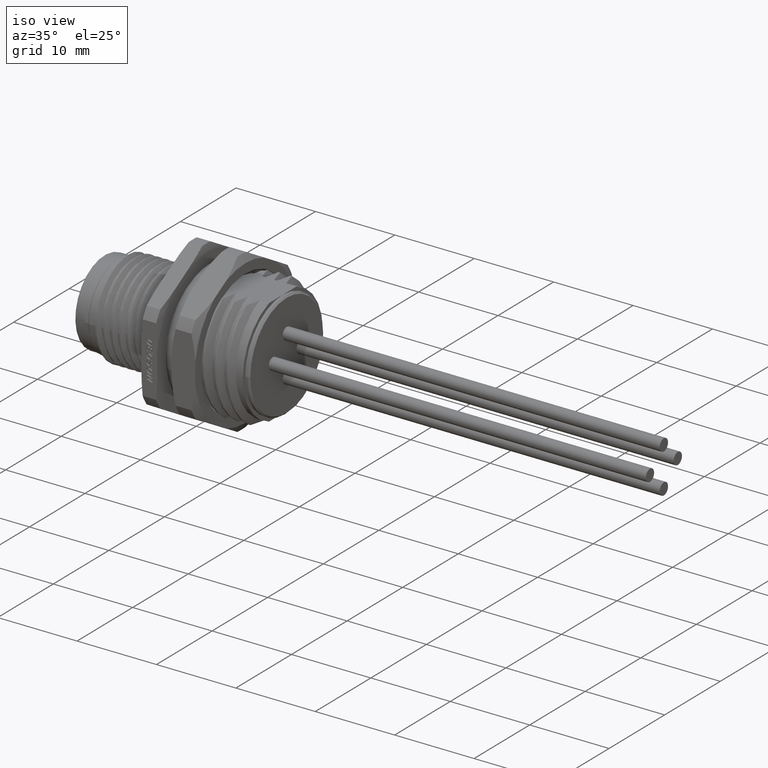
[diagram: clean part render]
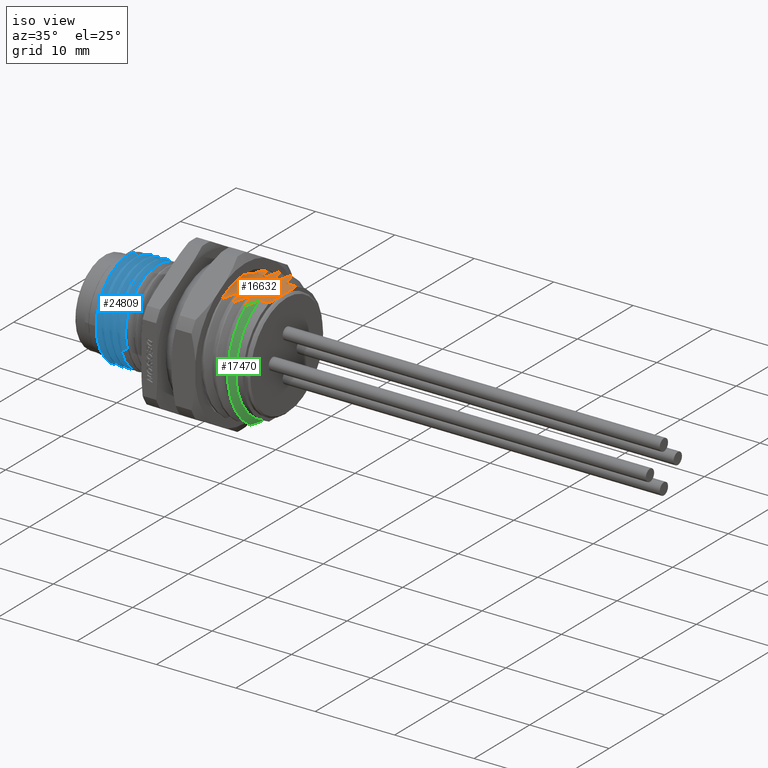
[diagram: same view with three faces highlighted in distinct colors, each labeled with its STEP entity id]
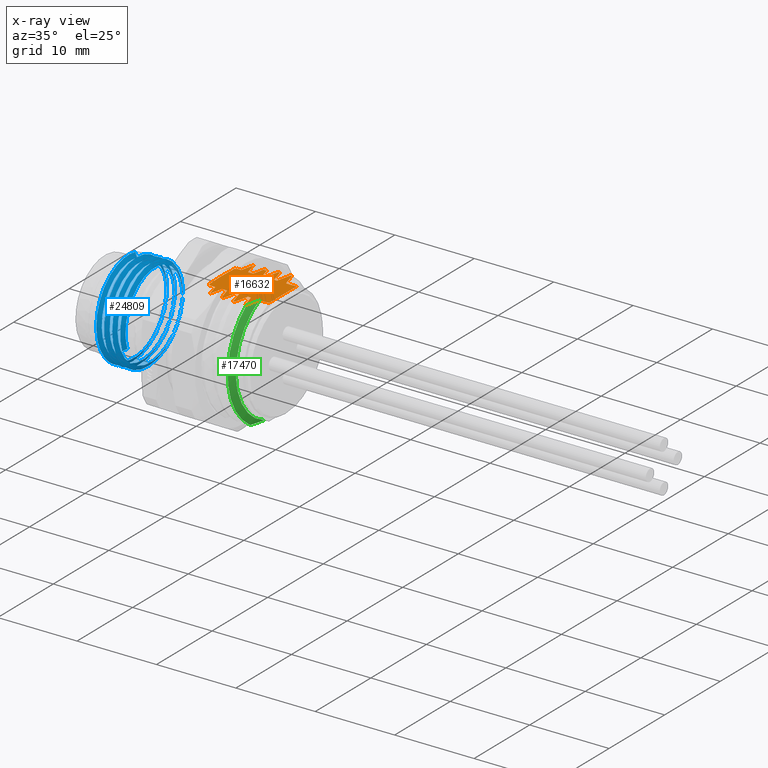
[diagram: x-ray of the same camera — body ghosted, the three highlighted faces saturated]
A machine part, iso view with three faces highlighted in distinct colors.
The next image is the same camera in x-ray (body ghosted, the three faces saturated) — at least one of them is partly hidden behind the body in this view.
Their STEP definitions:

[orange] entity #16632 — the highlighted planar face has unit normal (0, 0, 1).
#2389=CARTESIAN_POINT('',(1.32E1,2.357965224510E0,6.75E0));
#2390=CARTESIAN_POINT('',(1.32E1,2.152312586685E0,6.75E0));
#2391=CARTESIAN_POINT('',(1.318498684639E1,1.746341093339E0,6.75E0));
#2392=CARTESIAN_POINT('',(1.314711788030E1,1.156072136893E0,6.75E0));
#2393=CARTESIAN_POINT('',(1.311464950622E1,5.756160923899E-1,6.75E0));
#2394=CARTESIAN_POINT('',(1.310201385305E1,-2.989890547145E-6,6.75E0));
#2395=CARTESIAN_POINT('',(1.311464973056E1,-5.756207272899E-1,6.75E0));
#2396=CARTESIAN_POINT('',(1.314711802075E1,-1.156074191254E0,6.75E0));
#2397=CARTESIAN_POINT('',(1.318498682191E1,-1.746340916605E0,6.75E0));
#2398=CARTESIAN_POINT('',(1.32E1,-2.152312355365E0,6.75E0));
#2399=CARTESIAN_POINT('',(1.32E1,-2.357965224510E0,6.75E0));
#2449=DIRECTION('',(-1.E0,2.642330798607E-13,-1.776356839400E-14));
#2450=VECTOR('',#2449,2.E-1);
#2451=CARTESIAN_POINT('',(1.34E1,2.357965224510E0,6.75E0));
#2452=LINE('',#2451,#2450);
#2601=CARTESIAN_POINT('',(1.459402765201E1,-4.150597717826E0,6.749999999999E0));
#2602=CARTESIAN_POINT('',(1.464729465109E1,-3.957984882616E0,6.749999999999E0));
#2603=CARTESIAN_POINT('',(1.474646150922E1,-3.576789295933E0,6.75E0));
#2604=CARTESIAN_POINT('',(1.487277251728E1,-3.016127315945E0,6.750000000001E0));
#2605=CARTESIAN_POINT('',(1.494088167467E1,-2.651189148918E0,6.749999999997E0));
#2606=CARTESIAN_POINT('',(1.497111284327E1,-2.470798251593E0,6.749999999997E0));
#2608=CARTESIAN_POINT('',(1.480354051983E1,2.470798250943E0,6.749999998199E0));
#2609=CARTESIAN_POINT('',(1.476173655702E1,2.652848391958E0,6.749999998199E0));
#2610=CARTESIAN_POINT('',(1.467073913410E1,3.019985833935E0,6.749999382996E0));
#2611=CARTESIAN_POINT('',(1.451262290149E1,3.580528391124E0,6.750002162216E0));
#2612=CARTESIAN_POINT('',(1.439370141345E1,3.959790815311E0,6.749995366165E0));
#2613=CARTESIAN_POINT('',(1.433097569432E1,4.150963720785E0,6.749995366165E0));
#2744=CARTESIAN_POINT('',(1.609412503596E1,-4.150760927149E0,6.749999145165E0));
#2746=CARTESIAN_POINT('',(1.609412503596E1,-4.150760927149E0,6.749999145165E0));
#2747=CARTESIAN_POINT('',(1.609769192256E1,-4.137861464038E0,6.749999145165E0));
#2748=CARTESIAN_POINT('',(1.610489693866E1,-4.112053831763E0,6.750000364905E0));
#2749=CARTESIAN_POINT('',(1.611545001312E1,-4.073404954073E0,6.750000005084E0));
#2750=CARTESIAN_POINT('',(1.612239164162E1,-4.047496632788E0,6.749999744867E0));
#2751=CARTESIAN_POINT('',(1.612587242727E1,-4.034599482964E0,6.749999744867E0));
#2765=CARTESIAN_POINT('',(1.596809337878E1,3.717695735490E0,6.749992405908E0));
#2767=CARTESIAN_POINT('',(1.596809337878E1,3.717695735490E0,6.749992405908E0));
#2768=CARTESIAN_POINT('',(1.595340519619E1,3.765784702275E0,6.749992405908E0));
#2769=CARTESIAN_POINT('',(1.592362650913E1,3.861948493090E0,6.750000834875E0));
#2770=CARTESIAN_POINT('',(1.587791447360E1,4.006292479198E0,6.750008469075E0));
#2771=CARTESIAN_POINT('',(1.584668500284E1,4.102515145492E0,6.749979682241E0));
#2772=CARTESIAN_POINT('',(1.583090758806E1,4.150645732255E0,6.749979682241E0));
#2832=CARTESIAN_POINT('',(1.459402765201E1,-4.150597717826E0,6.749999999999E0));
#2833=CARTESIAN_POINT('',(1.453568532809E1,-3.972856215510E0,6.749999999999E0));
#2834=CARTESIAN_POINT('',(1.442189833322E1,-3.611803375592E0,6.749991694443E0));
#2835=CARTESIAN_POINT('',(1.426390353575E1,-3.056632872075E0,6.750029069451E0));
#2836=CARTESIAN_POINT('',(1.416671066915E1,-2.668698125120E0,6.749937708319E0));
#2837=CARTESIAN_POINT('',(1.412127009917E1,-2.470771619441E0,6.749937708319E0));
#2839=DIRECTION('',(0.E0,9.999999999997E-1,-8.113783170377E-7));
#2840=VECTOR('',#2839,1.128309315987E-1);
#2841=CARTESIAN_POINT('',(1.34E1,-2.470796156109E0,6.750000091549E0));
#2842=LINE('',#2841,#2840);
#2843=DIRECTION('',(0.E0,9.999999999992E-1,1.262853611314E-6));
#2844=VECTOR('',#2843,1.128308782191E-1);
#2845=CARTESIAN_POINT('',(1.34E1,2.357965224510E0,6.75E0));
#2846=LINE('',#2845,#2844);
#2847=CARTESIAN_POINT('',(1.395364358227E1,2.470782951407E0,6.749961172419E0));
#2848=CARTESIAN_POINT('',(1.398523574548E1,2.659059137770E0,6.749961172419E0));
#2849=CARTESIAN_POINT('',(1.405623791107E1,3.034349967497E0,6.750017501693E0));
#2850=CARTESIAN_POINT('',(1.418192635698E1,3.590567998582E0,6.749996985445E0));
#2851=CARTESIAN_POINT('',(1.427929833600E1,3.964054407596E0,6.749995366165E0));
#2852=CARTESIAN_POINT('',(1.433097569432E1,4.150963720785E0,6.749995366165E0));
#2854=CARTESIAN_POINT('',(1.545369918498E1,2.470795088316E0,6.749990764792E0));
#2855=CARTESIAN_POINT('',(1.548291791433E1,2.645249698317E0,6.749990764792E0));
#2856=CARTESIAN_POINT('',(1.554946463926E1,3.002472866440E0,6.750001600729E0));
#2857=CARTESIAN_POINT('',(1.567740378739E1,3.572909925218E0,6.750008250260E0));
#2858=CARTESIAN_POINT('',(1.577718178902E1,3.956394172911E0,6.749979682241E0));
#2859=CARTESIAN_POINT('',(1.583090758806E1,4.150645732255E0,6.749979682241E0));
#2861=CARTESIAN_POINT('',(1.596809337878E1,3.717695735490E0,6.749992405908E0));
#2862=CARTESIAN_POINT('',(1.598633488206E1,3.755506614778E0,6.749992405908E0));
#2863=CARTESIAN_POINT('',(1.602315392355E1,3.830929350400E0,6.750003543909E0));
#2864=CARTESIAN_POINT('',(1.607937765257E1,3.943639137085E0,6.749998987455E0));
#2865=CARTESIAN_POINT('',(1.611752362307E1,4.018429399013E0,6.75E0));
#2866=CARTESIAN_POINT('',(1.613674565180E1,4.055751358318E0,6.75E0));
#2868=CARTESIAN_POINT('',(1.613674565180E1,4.055751358318E0,6.75E0));
#2869=CARTESIAN_POINT('',(1.619587186177E1,3.872797509097E0,6.75E0));
#2870=CARTESIAN_POINT('',(1.630766205856E1,3.511425191441E0,6.750000697869E0));
#2871=CARTESIAN_POINT('',(1.645720545915E1,2.975228874216E0,6.749997557458E0));
#2872=CARTESIAN_POINT('',(1.654063456527E1,2.636616685349E0,6.750005234019E0));
#2873=CARTESIAN_POINT('',(1.657875044112E1,2.470798791844E0,6.750005234019E0));
#2875=CARTESIAN_POINT('',(1.695367126793E1,2.470797500730E0,6.750000030623E0));
#2876=CARTESIAN_POINT('',(1.698632437304E1,2.666017584289E0,6.750000030623E0));
#2877=CARTESIAN_POINT('',(1.706095285041E1,3.061321474102E0,6.749987903924E0));
#2878=CARTESIAN_POINT('',(1.720060893573E1,3.669308484009E0,6.750042290332E0));
#2879=CARTESIAN_POINT('',(1.731135296347E1,4.084013932951E0,6.749909386609E0));
#2880=CARTESIAN_POINT('',(1.737107000082E1,4.293817179761E0,6.749909386609E0));
#2882=CARTESIAN_POINT('',(1.755841575403E1,4.293815152026E0,6.749910899659E0));
#2883=CARTESIAN_POINT('',(1.762616835143E1,4.091561169835E0,6.749910899659E0));
#2884=CARTESIAN_POINT('',(1.775571379468E1,3.687091072249E0,6.750041575765E0));
#2885=CARTESIAN_POINT('',(1.793041055826E1,3.079981619257E0,6.749988135333E0));
#2886=CARTESIAN_POINT('',(1.803210158097E1,2.674095407997E0,6.749999967046E0));
#2887=CARTESIAN_POINT('',(1.807878825370E1,2.470797853558E0,6.749999967046E0));
#2889=CARTESIAN_POINT('',(1.845370085050E1,2.470794909090E0,6.749990208526E0));
#2890=CARTESIAN_POINT('',(1.848650159016E1,2.667140956171E0,6.749990208526E0));
#2891=CARTESIAN_POINT('',(1.856140698570E1,3.063937417701E0,6.749998716321E0));
#2892=CARTESIAN_POINT('',(1.870117575435E1,3.671888147382E0,6.750019180089E0));
#2893=CARTESIAN_POINT('',(1.881163240307E1,4.085141881858E0,6.749956102246E0));
#2894=CARTESIAN_POINT('',(1.887107691687E1,4.293856773240E0,6.749956102246E0));
#2896=CARTESIAN_POINT('',(1.905840772189E1,4.293854160148E0,6.749957537186E0));
#2897=CARTESIAN_POINT('',(1.912655302718E1,4.090536032657E0,6.749957537186E0));
#2898=CARTESIAN_POINT('',(1.925657332776E1,3.684608819866E0,6.750018615404E0));
#2899=CARTESIAN_POINT('',(1.943120466152E1,3.077321312002E0,6.749998540307E0));
#2900=CARTESIAN_POINT('',(1.953238022227E1,2.672939090366E0,6.749990995682E0));
#2901=CARTESIAN_POINT('',(1.957875959467E1,2.470793607076E0,6.749990995682E0));
#2903=CARTESIAN_POINT('',(1.974631845505E1,-2.470797095797E0,6.749996624238E0));
#2904=CARTESIAN_POINT('',(1.971324780340E1,-2.668316016661E0,6.749996624238E0));
#2905=CARTESIAN_POINT('',(1.963789218285E1,-3.066656714945E0,6.749991205755E0));
#2906=CARTESIAN_POINT('',(1.949805483858E1,-3.674523325341E0,6.750035843499E0));
#2907=CARTESIAN_POINT('',(1.938801768807E1,-4.086236483091E0,6.749922227999E0));
#2908=CARTESIAN_POINT('',(1.932894730710E1,-4.293827733021E0,6.749922227999E0));
#2910=CARTESIAN_POINT('',(1.914156644176E1,-4.293826290578E0,6.749923546462E0));
#2911=CARTESIAN_POINT('',(1.907344529032E1,-4.090423382096E0,6.749923546462E0));
#2912=CARTESIAN_POINT('',(1.894345749151E1,-3.684402288538E0,6.750035220569E0));
#2913=CARTESIAN_POINT('',(1.876888841861E1,-3.077102722173E0,6.749991408314E0));
#2914=CARTESIAN_POINT('',(1.866765652397E1,-2.672847080243E0,6.749996566887E0));
#2915=CARTESIAN_POINT('',(1.862122269507E1,-2.470796380462E0,6.749996566887E0));
#2917=CARTESIAN_POINT('',(1.824632121164E1,-2.470797124003E0,6.749997536541E0));
#2918=CARTESIAN_POINT('',(1.821410190430E1,-2.663580537681E0,6.749997536541E0));
#2919=CARTESIAN_POINT('',(1.814025488591E1,-3.055686306641E0,6.749994539404E0));
#2920=CARTESIAN_POINT('',(1.800060927142E1,-3.664669626324E0,6.750022807276E0));
#2921=CARTESIAN_POINT('',(1.788921384107E1,-4.082073701014E0,6.749950423421E0));
#2922=CARTESIAN_POINT('',(1.782891786645E1,-4.293851679638E0,6.749950423421E0));
#2924=CARTESIAN_POINT('',(1.764159688487E1,-4.293849052766E0,6.749952120002E0));
#2925=CARTESIAN_POINT('',(1.757254613141E1,-4.087768281353E0,6.749952120002E0));
#2926=CARTESIAN_POINT('',(1.744146788521E1,-3.678097340297E0,6.750022045594E0));
#2927=CARTESIAN_POINT('',(1.726685019651E1,-3.069854146402E0,6.749994660419E0));
#2928=CARTESIAN_POINT('',(1.716687212511E1,-2.669713989742E0,6.749997761960E0));
#2929=CARTESIAN_POINT('',(1.712121858162E1,-2.470796456296E0,6.749997761960E0));
#2931=CARTESIAN_POINT('',(1.674627912396E1,-2.470792454928E0,6.749983552810E0));
#2932=CARTESIAN_POINT('',(1.671211002092E1,-2.675320490088E0,6.749983552810E0));
#2933=CARTESIAN_POINT('',(1.663464752742E1,-3.082819772953E0,6.749997313978E0));
#2934=CARTESIAN_POINT('',(1.649552100809E1,-3.684897606422E0,6.750034071863E0));
#2935=CARTESIAN_POINT('',(1.638681918352E1,-4.090555507529E0,6.749922289668E0));
#2936=CARTESIAN_POINT('',(1.632897682089E1,-4.293601803197E0,6.749922289668E0));
#2938=CARTESIAN_POINT('',(1.62E1,-4.177254301543E0,6.749993477765E0));
#2939=CARTESIAN_POINT('',(1.619168654153E1,-4.161456259192E0,6.749993477765E0));
#2940=CARTESIAN_POINT('',(1.617510682501E1,-4.129803291467E0,6.750003009692E0));
#2941=CARTESIAN_POINT('',(1.615043556095E1,-4.082335249130E0,6.749999249431E0));
#2942=CARTESIAN_POINT('',(1.613402133200E1,-4.050483030598E0,6.749999744867E0));
#2943=CARTESIAN_POINT('',(1.612587242727E1,-4.034599482964E0,6.749999744867E0));
#2945=CARTESIAN_POINT('',(1.609412503596E1,-4.150760927149E0,6.749999145165E0));
#2946=CARTESIAN_POINT('',(1.603564351647E1,-3.972614601931E0,6.749999145165E0));
#2947=CARTESIAN_POINT('',(1.592177290560E1,-3.611039020938E0,6.749997274042E0));
#2948=CARTESIAN_POINT('',(1.576415867366E1,-3.058185659370E0,6.750010823106E0));
#2949=CARTESIAN_POINT('',(1.566682205156E1,-2.669386311478E0,6.749976563391E0));
#2950=CARTESIAN_POINT('',(1.562125545299E1,-2.470787377371E0,6.749976563391E0));
#2963=DIRECTION('',(9.999999956810E-1,3.401869578533E-5,-8.649080187633E-5));
#2964=VECTOR('',#2963,7.212701022884E-1);
#2965=CARTESIAN_POINT('',(1.34E1,-2.470796156109E0,6.750000091549E0));
#2966=LINE('',#2965,#2964);
#3127=DIRECTION('',(-9.999999777933E-1,-7.346228925492E-5,-1.975264490901E-4));
#3128=VECTOR('',#3127,2.746715599108E-1);
#3129=CARTESIAN_POINT('',(1.545369918498E1,2.470795088316E0,6.749990764792E0));
#3130=LINE('',#3129,#3128);
#3131=DIRECTION('',(9.999999923484E-1,-4.124490545554E-5,1.166282036816E-4));
#3132=VECTOR('',#3131,3.752673330080E-1);
#3133=CARTESIAN_POINT('',(1.497111284327E1,-2.470798251593E0,6.749999999997E0));
#3134=LINE('',#3133,#3132);
#3143=DIRECTION('',(-9.999999837736E-1,6.216093219367E-5,1.690825119126E-4));
#3144=VECTOR('',#3143,3.754871174314E-1);
#3145=CARTESIAN_POINT('',(1.517902763117E1,2.470774910314E0,6.749936509894E0));
#3146=LINE('',#3145,#3144);
#3147=CARTESIAN_POINT('',(1.480354051983E1,2.470798250943E0,6.749999998199E0));
#3162=DIRECTION('',(9.999999655177E-1,9.586925147614E-5,-2.444867322387E-4));
#3163=VECTOR('',#3162,2.748752890655E-1);
#3164=CARTESIAN_POINT('',(1.534638017340E1,-2.470813729459E0,6.750043766752E0));
#3165=LINE('',#3164,#3163);
#3243=DIRECTION('',(4.591728746376E-13,-9.999999561446E-1,2.961599918837E-4));
#3244=VECTOR('',#3243,1.160580428974E-1);
#3245=CARTESIAN_POINT('',(1.62E1,-4.177254301543E0,6.749993477765E0));
#3246=LINE('',#3245,#3244);
#3339=CARTESIAN_POINT('',(1.62E1,-4.293312339351E0,6.750027849514E0));
#3340=CARTESIAN_POINT('',(1.624301497796E1,-4.293312339351E0,6.750027849514E0));
#3341=CARTESIAN_POINT('',(1.628596184292E1,-4.293601803197E0,6.749922289668E0));
#3342=CARTESIAN_POINT('',(1.632897682089E1,-4.293601803197E0,6.749922289668E0));
#3425=DIRECTION('',(9.999999992250E-1,-1.067203695773E-5,3.789718295888E-5));
#3426=VECTOR('',#3425,3.749394579590E-1);
#3427=CARTESIAN_POINT('',(1.674627912396E1,-2.470792454928E0,6.749983552810E0));
#3428=LINE('',#3427,#3426);
#3429=DIRECTION('',(9.999999998607E-1,-1.402337750231E-5,-9.057079081990E-6));
#3430=VECTOR('',#3429,1.873209816121E-1);
#3431=CARTESIAN_POINT('',(1.764159688487E1,-4.293849052766E0,6.749952120002E0));
#3432=LINE('',#3431,#3430);
#3515=DIRECTION('',(9.999999999947E-1,1.983299066032E-6,-2.586423798349E-6));
#3516=VECTOR('',#3515,3.749014834288E-1);
#3517=CARTESIAN_POINT('',(1.824632121164E1,-2.470797124003E0,6.749997536541E0));
#3518=LINE('',#3517,#3516);
#3519=DIRECTION('',(9.999999999456E-1,-7.697916937398E-6,-7.036277072384E-6));
#3520=VECTOR('',#3519,1.873808653510E-1);
#3521=CARTESIAN_POINT('',(1.914156644176E1,-4.293826290578E0,6.749923546462E0));
#3522=LINE('',#3521,#3520);
#3583=DIRECTION('',(9.999999999954E-1,-8.820545044026E-7,2.916104811137E-6));
#3584=VECTOR('',#3583,1.153681544954E0);
#3585=CARTESIAN_POINT('',(1.974631845505E1,-2.470797095797E0,6.749996624238E0));
#3586=LINE('',#3585,#3584);
#3597=DIRECTION('',(0.E0,1.E0,4.656490289112E-9));
#3598=VECTOR('',#3597,2.470798113408E0);
#3599=CARTESIAN_POINT('',(2.09E1,-2.470798113407E0,6.749999988495E0));
#3600=LINE('',#3599,#3598);
#3711=DIRECTION('',(0.E0,1.E0,1.301912922752E-8));
#3712=VECTOR('',#3711,2.470797512753E0);
#3713=CARTESIAN_POINT('',(2.09E1,9.667734725850E-14,6.75E0));
#3714=LINE('',#3713,#3712);
#3743=DIRECTION('',(-9.999999999722E-1,-2.956067966106E-6,-6.839395622668E-6));
#3744=VECTOR('',#3743,1.321240405364E0);
#3745=CARTESIAN_POINT('',(2.09E1,2.470797512753E0,6.750000032168E0));
#3746=LINE('',#3745,#3744);
#3851=DIRECTION('',(-9.999999998734E-1,1.394907883899E-5,-7.659927557353E-6));
#3852=VECTOR('',#3851,1.873308050363E-1);
#3853=CARTESIAN_POINT('',(1.905840772189E1,4.293854160148E0,6.749957537186E0));
#3854=LINE('',#3853,#3852);
#3922=DIRECTION('',(-9.999999996304E-1,7.853743938206E-6,2.602878657461E-5));
#3923=VECTOR('',#3922,3.749125969395E-1);
#3924=CARTESIAN_POINT('',(1.845370085050E1,2.470794909090E0,6.749990208526E0));
#3925=LINE('',#3924,#3923);
#3941=DIRECTION('',(-9.999999999088E-1,1.082348972579E-5,-8.076240551711E-6));
#3942=VECTOR('',#3941,1.873457532205E-1);
#3943=CARTESIAN_POINT('',(1.755841575403E1,4.293815152026E0,6.749910899659E0));
#3944=LINE('',#3943,#3942);
#4012=DIRECTION('',(-9.999999998978E-1,3.443696991544E-6,1.387865278128E-5));
#4013=VECTOR('',#4012,3.749208268497E-1);
#4014=CARTESIAN_POINT('',(1.695367126793E1,2.470797500730E0,6.750000030623E0));
#4015=LINE('',#4014,#4013);
#4566=DIRECTION('',(1.E0,-8.659739592075E-14,5.329070518200E-14));
#4567=VECTOR('',#4566,2.E-1);
#4568=CARTESIAN_POINT('',(1.32E1,-2.357965224510E0,6.75E0));
#4569=LINE('',#4568,#4567);
#4605=DIRECTION('',(-9.999999972406E-1,2.375413011880E-5,7.038837070160E-5));
#4606=VECTOR('',#4605,5.536435837976E-1);
#4607=CARTESIAN_POINT('',(1.395364358227E1,2.470782951407E0,6.749961172419E0));
#4608=LINE('',#4607,#4606);
#12815=CARTESIAN_POINT('',(1.32E1,2.357965224510E0,6.75E0));
#12816=VERTEX_POINT('',#12815);
#12817=VERTEX_POINT('',#2399);
#12822=CARTESIAN_POINT('',(1.34E1,2.357965224510E0,6.75E0));
#12824=VERTEX_POINT('',#12822);
#12900=VERTEX_POINT('',#2601);
#12901=VERTEX_POINT('',#2606);
#12902=VERTEX_POINT('',#3147);
#12903=VERTEX_POINT('',#2613);
#12915=VERTEX_POINT('',#2744);
#12916=VERTEX_POINT('',#2751);
#12918=VERTEX_POINT('',#2765);
#12919=VERTEX_POINT('',#2772);
#12921=VERTEX_POINT('',#2837);
#12922=CARTESIAN_POINT('',(1.34E1,-2.470796156109E0,6.750000091549E0));
#12923=VERTEX_POINT('',#12922);
#12924=CARTESIAN_POINT('',(1.34E1,-2.357965224510E0,6.75E0));
#12925=VERTEX_POINT('',#12924);
#12926=CARTESIAN_POINT('',(1.34E1,2.470796102729E0,6.750000142489E0));
#12927=VERTEX_POINT('',#12926);
#12928=CARTESIAN_POINT('',(1.395364358227E1,2.470782951407E0,6.749961172419E0));
#12929=VERTEX_POINT('',#12928);
#12930=CARTESIAN_POINT('',(1.517902763117E1,2.470774910314E0,6.749936509894E0));
#12931=VERTEX_POINT('',#12930);
#12932=CARTESIAN_POINT('',(1.545369918498E1,2.470795088316E0,6.749990764792E0));
#12933=VERTEX_POINT('',#12932);
#12934=VERTEX_POINT('',#2866);
#12935=VERTEX_POINT('',#2873);
#12936=CARTESIAN_POINT('',(1.695367126793E1,2.470797500730E0,6.750000030623E0));
#12937=VERTEX_POINT('',#12936);
#12938=VERTEX_POINT('',#2880);
#12939=CARTESIAN_POINT('',(1.755841575403E1,4.293815152026E0,6.749910899659E0));
#12940=VERTEX_POINT('',#12939);
#12941=VERTEX_POINT('',#2887);
#12942=CARTESIAN_POINT('',(1.845370085050E1,2.470794909090E0,6.749990208526E0));
#12943=VERTEX_POINT('',#12942);
#12944=VERTEX_POINT('',#2894);
#12945=CARTESIAN_POINT('',(1.905840772189E1,4.293854160148E0,6.749957537186E0));
#12946=VERTEX_POINT('',#12945);
#12947=VERTEX_POINT('',#2901);
#12948=CARTESIAN_POINT('',(2.09E1,2.470797512753E0,6.750000032168E0));
#12949=VERTEX_POINT('',#12948);
#12950=CARTESIAN_POINT('',(2.09E1,9.667734725850E-14,6.75E0));
#12951=VERTEX_POINT('',#12950);
#12952=CARTESIAN_POINT('',(2.09E1,-2.470798113407E0,6.749999988495E0));
#12953=VERTEX_POINT('',#12952);
#12954=CARTESIAN_POINT('',(1.974631845505E1,-2.470797095797E0,
6.749996624238E0));
#12955=VERTEX_POINT('',#12954);
#12956=VERTEX_POINT('',#2908);
#12957=CARTESIAN_POINT('',(1.914156644176E1,-4.293826290578E0,
6.749923546462E0));
#12958=VERTEX_POINT('',#12957);
#12959=VERTEX_POINT('',#2915);
#12960=CARTESIAN_POINT('',(1.824632121164E1,-2.470797124003E0,
6.749997536541E0));
#12961=VERTEX_POINT('',#12960);
#12962=VERTEX_POINT('',#2922);
#12963=CARTESIAN_POINT('',(1.764159688487E1,-4.293849052766E0,
6.749952120002E0));
#12964=VERTEX_POINT('',#12963);
#12965=VERTEX_POINT('',#2929);
#12966=CARTESIAN_POINT('',(1.674627912396E1,-2.470792454928E0,
6.749983552810E0));
#12967=VERTEX_POINT('',#12966);
#12968=VERTEX_POINT('',#2936);
#12969=VERTEX_POINT('',#3339);
#12970=CARTESIAN_POINT('',(1.62E1,-4.177254301543E0,6.749993477765E0));
#12971=VERTEX_POINT('',#12970);
#12972=VERTEX_POINT('',#2950);
#12973=CARTESIAN_POINT('',(1.534638017340E1,-2.470813729459E0,
6.750043766752E0));
#12974=VERTEX_POINT('',#12973);
#16541=CARTESIAN_POINT('',(1.63E1,0.E0,6.75E0));
#16542=DIRECTION('',(0.E0,0.E0,1.E0));
#16543=DIRECTION('',(0.E0,1.E0,0.E0));
#16544=AXIS2_PLACEMENT_3D('',#16541,#16542,#16543);
#16545=PLANE('',#16544);
#16546=ORIENTED_EDGE('',*,*,#16488,.F.);
#16548=ORIENTED_EDGE('',*,*,#16547,.T.);
#16550=ORIENTED_EDGE('',*,*,#16549,.F.);
#16552=ORIENTED_EDGE('',*,*,#16551,.T.);
#16554=ORIENTED_EDGE('',*,*,#16553,.F.);
#16555=ORIENTED_EDGE('',*,*,#16154,.F.);
#16556=ORIENTED_EDGE('',*,*,#16226,.F.);
#16558=ORIENTED_EDGE('',*,*,#16557,.T.);
#16560=ORIENTED_EDGE('',*,*,#16559,.F.);
#16562=ORIENTED_EDGE('',*,*,#16561,.T.);
#16563=ORIENTED_EDGE('',*,*,#16492,.F.);
#16565=ORIENTED_EDGE('',*,*,#16564,.F.);
#16567=ORIENTED_EDGE('',*,*,#16566,.F.);
#16569=ORIENTED_EDGE('',*,*,#16568,.T.);
#16570=ORIENTED_EDGE('',*,*,#16526,.F.);
#16572=ORIENTED_EDGE('',*,*,#16571,.T.);
#16574=ORIENTED_EDGE('',*,*,#16573,.T.);
#16576=ORIENTED_EDGE('',*,*,#16575,.F.);
#16578=ORIENTED_EDGE('',*,*,#16577,.T.);
#16580=ORIENTED_EDGE('',*,*,#16579,.F.);
#16582=ORIENTED_EDGE('',*,*,#16581,.T.);
#16584=ORIENTED_EDGE('',*,*,#16583,.F.);
#16586=ORIENTED_EDGE('',*,*,#16585,.T.);
#16588=ORIENTED_EDGE('',*,*,#16587,.F.);
#16590=ORIENTED_EDGE('',*,*,#16589,.T.);
#16592=ORIENTED_EDGE('',*,*,#16591,.F.);
#16594=ORIENTED_EDGE('',*,*,#16593,.F.);
#16596=ORIENTED_EDGE('',*,*,#16595,.F.);
#16598=ORIENTED_EDGE('',*,*,#16597,.F.);
#16600=ORIENTED_EDGE('',*,*,#16599,.T.);
#16602=ORIENTED_EDGE('',*,*,#16601,.F.);
#16604=ORIENTED_EDGE('',*,*,#16603,.T.);
#16606=ORIENTED_EDGE('',*,*,#16605,.F.);
#16608=ORIENTED_EDGE('',*,*,#16607,.T.);
#16610=ORIENTED_EDGE('',*,*,#16609,.F.);
#16612=ORIENTED_EDGE('',*,*,#16611,.T.);
#16614=ORIENTED_EDGE('',*,*,#16613,.F.);
#16616=ORIENTED_EDGE('',*,*,#16615,.T.);
#16618=ORIENTED_EDGE('',*,*,#16617,.F.);
#16620=ORIENTED_EDGE('',*,*,#16619,.F.);
#16622=ORIENTED_EDGE('',*,*,#16621,.T.);
#16623=ORIENTED_EDGE('',*,*,#16520,.F.);
#16625=ORIENTED_EDGE('',*,*,#16624,.T.);
#16627=ORIENTED_EDGE('',*,*,#16626,.F.);
#16629=ORIENTED_EDGE('',*,*,#16628,.F.);
#16630=EDGE_LOOP('',(#16546,#16548,#16550,#16552,#16554,#16555,#16556,#16558,
#16560,#16562,#16563,#16565,#16567,#16569,#16570,#16572,#16574,#16576,#16578,
#16580,#16582,#16584,#16586,#16588,#16590,#16592,#16594,#16596,#16598,#16600,
#16602,#16604,#16606,#16608,#16610,#16612,#16614,#16616,#16618,#16620,#16622,
#16623,#16625,#16627,#16629));
#16631=FACE_OUTER_BOUND('',#16630,.F.);
#16632=ADVANCED_FACE('',(#16631),#16545,.T.);
#2400=B_SPLINE_CURVE_WITH_KNOTS('',3,(#2389,#2390,#2391,#2392,#2393,#2394,#2395,
#2396,#2397,#2398,#2399),.UNSPECIFIED.,.F.,.F.,(4,1,1,1,1,1,1,1,4),(0.E0,
1.25E-1,2.5E-1,3.75E-1,5.E-1,6.25E-1,7.5E-1,8.75E-1,1.E0),.UNSPECIFIED.);
#2607=B_SPLINE_CURVE_WITH_KNOTS('',3,(#2601,#2602,#2603,#2604,#2605,#2606),
.UNSPECIFIED.,.F.,.F.,(4,1,1,4),(0.E0,3.333333333333E-1,6.666666666667E-1,1.E0),
.UNSPECIFIED.);
#2614=B_SPLINE_CURVE_WITH_KNOTS('',3,(#2608,#2609,#2610,#2611,#2612,#2613),
.UNSPECIFIED.,.F.,.F.,(4,1,1,4),(0.E0,3.333333333333E-1,6.666666666667E-1,1.E0),
.UNSPECIFIED.);
#2752=B_SPLINE_CURVE_WITH_KNOTS('',3,(#2746,#2747,#2748,#2749,#2750,#2751),
.UNSPECIFIED.,.F.,.F.,(4,1,1,4),(0.E0,3.333333333333E-1,6.666666666667E-1,1.E0),
.UNSPECIFIED.);
#2773=B_SPLINE_CURVE_WITH_KNOTS('',3,(#2767,#2768,#2769,#2770,#2771,#2772),
.UNSPECIFIED.,.F.,.F.,(4,1,1,4),(0.E0,3.333333333333E-1,6.666666666667E-1,1.E0),
.UNSPECIFIED.);
#2838=B_SPLINE_CURVE_WITH_KNOTS('',3,(#2832,#2833,#2834,#2835,#2836,#2837),
.UNSPECIFIED.,.F.,.F.,(4,1,1,4),(0.E0,3.333333333333E-1,6.666666666667E-1,1.E0),
.UNSPECIFIED.);
#2853=B_SPLINE_CURVE_WITH_KNOTS('',3,(#2847,#2848,#2849,#2850,#2851,#2852),
.UNSPECIFIED.,.F.,.F.,(4,1,1,4),(0.E0,3.333333333333E-1,6.666666666667E-1,1.E0),
.UNSPECIFIED.);
#2860=B_SPLINE_CURVE_WITH_KNOTS('',3,(#2854,#2855,#2856,#2857,#2858,#2859),
.UNSPECIFIED.,.F.,.F.,(4,1,1,4),(0.E0,3.333333333333E-1,6.666666666667E-1,1.E0),
.UNSPECIFIED.);
#2867=B_SPLINE_CURVE_WITH_KNOTS('',3,(#2861,#2862,#2863,#2864,#2865,#2866),
.UNSPECIFIED.,.F.,.F.,(4,1,1,4),(0.E0,3.333333333333E-1,6.666666666667E-1,1.E0),
.UNSPECIFIED.);
#2874=B_SPLINE_CURVE_WITH_KNOTS('',3,(#2868,#2869,#2870,#2871,#2872,#2873),
.UNSPECIFIED.,.F.,.F.,(4,1,1,4),(0.E0,3.333333333333E-1,6.666666666667E-1,1.E0),
.UNSPECIFIED.);
#2881=B_SPLINE_CURVE_WITH_KNOTS('',3,(#2875,#2876,#2877,#2878,#2879,#2880),
.UNSPECIFIED.,.F.,.F.,(4,1,1,4),(0.E0,3.333333333333E-1,6.666666666667E-1,1.E0),
.UNSPECIFIED.);
#2888=B_SPLINE_CURVE_WITH_KNOTS('',3,(#2882,#2883,#2884,#2885,#2886,#2887),
.UNSPECIFIED.,.F.,.F.,(4,1,1,4),(0.E0,3.333333333333E-1,6.666666666667E-1,1.E0),
.UNSPECIFIED.);
#2895=B_SPLINE_CURVE_WITH_KNOTS('',3,(#2889,#2890,#2891,#2892,#2893,#2894),
.UNSPECIFIED.,.F.,.F.,(4,1,1,4),(0.E0,3.333333333333E-1,6.666666666667E-1,1.E0),
.UNSPECIFIED.);
#2902=B_SPLINE_CURVE_WITH_KNOTS('',3,(#2896,#2897,#2898,#2899,#2900,#2901),
.UNSPECIFIED.,.F.,.F.,(4,1,1,4),(0.E0,3.333333333333E-1,6.666666666667E-1,1.E0),
.UNSPECIFIED.);
#2909=B_SPLINE_CURVE_WITH_KNOTS('',3,(#2903,#2904,#2905,#2906,#2907,#2908),
.UNSPECIFIED.,.F.,.F.,(4,1,1,4),(0.E0,3.333333333333E-1,6.666666666667E-1,1.E0),
.UNSPECIFIED.);
#2916=B_SPLINE_CURVE_WITH_KNOTS('',3,(#2910,#2911,#2912,#2913,#2914,#2915),
.UNSPECIFIED.,.F.,.F.,(4,1,1,4),(0.E0,3.333333333333E-1,6.666666666667E-1,1.E0),
.UNSPECIFIED.);
#2923=B_SPLINE_CURVE_WITH_KNOTS('',3,(#2917,#2918,#2919,#2920,#2921,#2922),
.UNSPECIFIED.,.F.,.F.,(4,1,1,4),(0.E0,3.333333333333E-1,6.666666666667E-1,1.E0),
.UNSPECIFIED.);
#2930=B_SPLINE_CURVE_WITH_KNOTS('',3,(#2924,#2925,#2926,#2927,#2928,#2929),
.UNSPECIFIED.,.F.,.F.,(4,1,1,4),(0.E0,3.333333333333E-1,6.666666666667E-1,1.E0),
.UNSPECIFIED.);
#2937=B_SPLINE_CURVE_WITH_KNOTS('',3,(#2931,#2932,#2933,#2934,#2935,#2936),
.UNSPECIFIED.,.F.,.F.,(4,1,1,4),(0.E0,3.333333333333E-1,6.666666666667E-1,1.E0),
.UNSPECIFIED.);
#2944=B_SPLINE_CURVE_WITH_KNOTS('',3,(#2938,#2939,#2940,#2941,#2942,#2943),
.UNSPECIFIED.,.F.,.F.,(4,1,1,4),(0.E0,3.333333333333E-1,6.666666666667E-1,1.E0),
.UNSPECIFIED.);
#2951=B_SPLINE_CURVE_WITH_KNOTS('',3,(#2945,#2946,#2947,#2948,#2949,#2950),
.UNSPECIFIED.,.F.,.F.,(4,1,1,4),(0.E0,3.333333333333E-1,6.666666666667E-1,1.E0),
.UNSPECIFIED.);
#3343=B_SPLINE_CURVE_WITH_KNOTS('',3,(#3339,#3340,#3341,#3342),.UNSPECIFIED.,
.F.,.F.,(4,4),(0.E0,1.E0),.UNSPECIFIED.);
#16154=EDGE_CURVE('',#12816,#12817,#2400,.T.);
#16226=EDGE_CURVE('',#12824,#12816,#2452,.T.);
#16488=EDGE_CURVE('',#12900,#12901,#2607,.T.);
#16492=EDGE_CURVE('',#12902,#12903,#2614,.T.);
#16520=EDGE_CURVE('',#12915,#12916,#2752,.T.);
#16526=EDGE_CURVE('',#12918,#12919,#2773,.T.);
#16547=EDGE_CURVE('',#12900,#12921,#2838,.T.);
#16549=EDGE_CURVE('',#12923,#12921,#2966,.T.);
#16551=EDGE_CURVE('',#12923,#12925,#2842,.T.);
#16553=EDGE_CURVE('',#12817,#12925,#4569,.T.);
#16557=EDGE_CURVE('',#12824,#12927,#2846,.T.);
#16559=EDGE_CURVE('',#12929,#12927,#4608,.T.);
#16561=EDGE_CURVE('',#12929,#12903,#2853,.T.);
#16564=EDGE_CURVE('',#12931,#12902,#3146,.T.);
#16566=EDGE_CURVE('',#12933,#12931,#3130,.T.);
#16568=EDGE_CURVE('',#12933,#12919,#2860,.T.);
#16571=EDGE_CURVE('',#12918,#12934,#2867,.T.);
#16573=EDGE_CURVE('',#12934,#12935,#2874,.T.);
#16575=EDGE_CURVE('',#12937,#12935,#4015,.T.);
#16577=EDGE_CURVE('',#12937,#12938,#2881,.T.);
#16579=EDGE_CURVE('',#12940,#12938,#3944,.T.);
#16581=EDGE_CURVE('',#12940,#12941,#2888,.T.);
#16583=EDGE_CURVE('',#12943,#12941,#3925,.T.);
#16585=EDGE_CURVE('',#12943,#12944,#2895,.T.);
#16587=EDGE_CURVE('',#12946,#12944,#3854,.T.);
#16589=EDGE_CURVE('',#12946,#12947,#2902,.T.);
#16591=EDGE_CURVE('',#12949,#12947,#3746,.T.);
#16593=EDGE_CURVE('',#12951,#12949,#3714,.T.);
#16595=EDGE_CURVE('',#12953,#12951,#3600,.T.);
#16597=EDGE_CURVE('',#12955,#12953,#3586,.T.);
#16599=EDGE_CURVE('',#12955,#12956,#2909,.T.);
#16601=EDGE_CURVE('',#12958,#12956,#3522,.T.);
#16603=EDGE_CURVE('',#12958,#12959,#2916,.T.);
#16605=EDGE_CURVE('',#12961,#12959,#3518,.T.);
#16607=EDGE_CURVE('',#12961,#12962,#2923,.T.);
#16609=EDGE_CURVE('',#12964,#12962,#3432,.T.);
#16611=EDGE_CURVE('',#12964,#12965,#2930,.T.);
#16613=EDGE_CURVE('',#12967,#12965,#3428,.T.);
#16615=EDGE_CURVE('',#12967,#12968,#2937,.T.);
#16617=EDGE_CURVE('',#12969,#12968,#3343,.T.);
#16619=EDGE_CURVE('',#12971,#12969,#3246,.T.);
#16621=EDGE_CURVE('',#12971,#12916,#2944,.T.);
#16624=EDGE_CURVE('',#12915,#12972,#2951,.T.);
#16626=EDGE_CURVE('',#12974,#12972,#3165,.T.);
#16628=EDGE_CURVE('',#12901,#12974,#3134,.T.);

[blue] entity #24809 — the highlighted face is a freeform B-spline surface patch.
#7888=CARTESIAN_POINT('',(1.636992851998E0,1.294918229946E0,5.302669388188E0));
#7927=CARTESIAN_POINT('',(1.925111254651E0,-5.458458399529E0,
-8.206942130477E-7));
#7928=CARTESIAN_POINT('',(1.914412544869E0,-5.458458399529E0,
3.664293907141E-1));
#7929=CARTESIAN_POINT('',(1.893115159055E0,-5.384437585910E0,1.098742140102E0));
#7930=CARTESIAN_POINT('',(1.861135246664E0,-5.056972880419E0,2.150564443628E0));
#7931=CARTESIAN_POINT('',(1.829176968261E0,-4.526463733561E0,3.116221589226E0));
#7932=CARTESIAN_POINT('',(1.797128047100E0,-3.811812421470E0,3.958638278915E0));
#7933=CARTESIAN_POINT('',(1.765102310613E0,-2.943646846018E0,4.640527581535E0));
#7934=CARTESIAN_POINT('',(1.733086906901E0,-1.957047105679E0,5.135271923452E0));
#7935=CARTESIAN_POINT('',(1.700993537566E0,-8.892841714037E-1,
5.423062380253E0));
#7936=CARTESIAN_POINT('',(1.669057907718E0,2.111908467954E-1,5.491300731332E0));
#7937=CARTESIAN_POINT('',(1.647588992560E0,9.395726624290E-1,5.389445201021E0));
#7938=CARTESIAN_POINT('',(1.636992851998E0,1.294918229946E0,5.302669388188E0));
#7940=DIRECTION('',(-5.000193582557E-1,2.054454894906E-1,8.412923345767E-1));
#7941=VECTOR('',#7940,6.252288394908E-1);
#7942=CARTESIAN_POINT('',(1.636992851998E0,1.294918229946E0,5.302669388188E0));
#7943=LINE('',#7942,#7941);
#7952=DIRECTION('',(-5.000274263320E-1,-8.236424220386E-1,-2.675551037340E-1));
#7953=VECTOR('',#7952,6.251955744595E-1);
#7954=CARTESIAN_POINT('',(4.975096498124E0,-5.191315224116E0,
-1.686799863163E0));
#7955=LINE('',#7954,#7953);
#7956=CARTESIAN_POINT('',(4.662481564073E0,-5.706252821312E0,
-1.854074129942E0));
#7957=CARTESIAN_POINT('',(4.657216088838E0,-5.767530541737E0,
-1.665269791623E0));
#7958=CARTESIAN_POINT('',(4.646636632071E0,-5.871580118102E0,
-1.281113648382E0));
#7959=CARTESIAN_POINT('',(4.630825048782E0,-5.970072617218E0,
-6.909431386897E-1));
#7960=CARTESIAN_POINT('',(4.615044071796E0,-6.009151074873E0,
-9.217562376877E-2));
#7961=CARTESIAN_POINT('',(4.598981343265E0,-5.988288682331E0,
5.083857115927E-1));
#7962=CARTESIAN_POINT('',(4.583150709323E0,-5.907453379673E0,1.103988976608E0));
#7963=CARTESIAN_POINT('',(4.567234824451E0,-5.768277881511E0,1.687179967125E0));
#7964=CARTESIAN_POINT('',(4.551285384809E0,-5.572657403617E0,2.250383635599E0));
#7965=CARTESIAN_POINT('',(4.535612255514E0,-5.322299568049E0,2.790872124321E0));
#7966=CARTESIAN_POINT('',(4.519978000841E0,-5.018528613291E0,3.306038826964E0));
#7967=CARTESIAN_POINT('',(4.503923439686E0,-4.664945189643E0,3.789104205984E0));
#7968=CARTESIAN_POINT('',(4.487989284992E0,-4.265683431101E0,4.233395465936E0));
#7969=CARTESIAN_POINT('',(4.472284558072E0,-3.825009560811E0,4.635332309561E0));
#7970=CARTESIAN_POINT('',(4.456660314025E0,-3.347083547282E0,4.991312167186E0));
#7971=CARTESIAN_POINT('',(4.440723302405E0,-2.836579678680E0,5.298083460337E0));
#7972=CARTESIAN_POINT('',(4.424896895788E0,-2.298424513576E0,5.552800195929E0));
#7973=CARTESIAN_POINT('',(4.409183255276E0,-1.737713481546E0,5.753172078700E0));
#7974=CARTESIAN_POINT('',(4.393442774900E0,-1.159525859713E0,5.896792418401E0));
#7975=CARTESIAN_POINT('',(4.377585187468E0,-5.695120325453E-1,
5.982572811926E0));
#7976=CARTESIAN_POINT('',(4.361833284686E0,2.664388269806E-2,6.009656894925E0));
#7977=CARTESIAN_POINT('',(4.345982128658E0,6.231559328920E-1,5.977554000820E0));
#7978=CARTESIAN_POINT('',(4.330065484791E0,1.214218898756E0,5.885855772158E0));
#7979=CARTESIAN_POINT('',(4.314223192031E0,1.793828553362E0,5.735824937824E0));
#7980=CARTESIAN_POINT('',(4.298532816559E0,2.355964065560E0,5.528728003921E0));
#7981=CARTESIAN_POINT('',(4.282518170768E0,2.894655689703E0,5.266779654111E0));
#7982=CARTESIAN_POINT('',(4.266594759760E0,3.404087308141E0,4.952714664394E0));
#7983=CARTESIAN_POINT('',(4.250811149476E0,3.879314035631E0,4.590148366336E0));
#7984=CARTESIAN_POINT('',(4.235090141692E0,4.315314635536E0,4.182738318070E0));
#7985=CARTESIAN_POINT('',(4.219207314902E0,4.708429933811E0,3.734465480717E0));
#7986=CARTESIAN_POINT('',(4.203424612064E0,5.055389794865E0,3.249487226629E0));
#7987=CARTESIAN_POINT('',(4.187638429520E0,5.352857787923E0,2.732420963954E0));
#7988=CARTESIAN_POINT('',(4.171752926870E0,5.597398271066E0,2.187913463984E0));
#7989=CARTESIAN_POINT('',(4.155919398337E0,5.786864684989E0,1.621467474318E0));
#7990=CARTESIAN_POINT('',(4.140329241047E0,5.919178114861E0,1.038464913109E0));
#7991=CARTESIAN_POINT('',(4.124389954404E0,5.993093220700E0,4.463954922314E-1));
#7992=CARTESIAN_POINT('',(4.108429014932E0,6.007987680442E0,
-1.462710734892E-1));
#7993=CARTESIAN_POINT('',(4.092902060269E0,5.964414363181E0,
-7.361382485853E-1));
#7994=CARTESIAN_POINT('',(4.077426246572E0,5.862556809246E0,-1.321028871481E0));
#7995=CARTESIAN_POINT('',(4.061457226169E0,5.703175280006E0,-1.894594567683E0));
#7996=CARTESIAN_POINT('',(4.045605546328E0,5.487687581593E0,-2.449863557578E0));
#7997=CARTESIAN_POINT('',(4.029884296921E0,5.218244595839E0,-2.981388842423E0));
#7998=CARTESIAN_POINT('',(4.014106914741E0,4.897025311950E0,-3.483765371727E0));
#7999=CARTESIAN_POINT('',(3.998242593789E0,4.527094898964E0,-3.952412521658E0));
#8000=CARTESIAN_POINT('',(3.982477928880E0,4.111656869493E0,-4.383055841559E0));
#8001=CARTESIAN_POINT('',(3.966566975657E0,3.654705609814E0,-4.771075883883E0));
#8002=CARTESIAN_POINT('',(3.950563669198E0,3.160406050196E0,-5.111805217494E0));
#8003=CARTESIAN_POINT('',(3.934648920587E0,2.634438209464E0,-5.401711465094E0));
#8004=CARTESIAN_POINT('',(3.919012828520E0,2.082680399784E0,-5.637288421429E0));
#8005=CARTESIAN_POINT('',(3.903047940243E0,1.511985161680E0,-5.816308957162E0));
#8006=CARTESIAN_POINT('',(3.887052936133E0,9.303194861252E-1,
-5.937329692245E0));
#8007=CARTESIAN_POINT('',(3.871476696016E0,3.412951776774E-1,
-6.000115856776E0));
#8008=CARTESIAN_POINT('',(3.855958634509E0,-2.532685231201E-1,
-6.004246196977E0));
#8009=CARTESIAN_POINT('',(3.840007600999E0,-8.468868921952E-1,
-5.949604371568E0));
#8010=CARTESIAN_POINT('',(3.824166811751E0,-1.431669700696E0,
-5.836695277483E0));
#8011=CARTESIAN_POINT('',(3.808460110686E0,-2.002217806508E0,
-5.666566221921E0));
#8012=CARTESIAN_POINT('',(3.792634957638E0,-2.553687248093E0,
-5.440193104680E0));
#8013=CARTESIAN_POINT('',(3.776796870101E0,-3.080737014771E0,
-5.159976618972E0));
#8014=CARTESIAN_POINT('',(3.761099150651E0,-3.577884517515E0,
-4.828628799374E0));
#8015=CARTESIAN_POINT('',(3.745205660076E0,-4.040100122958E0,
-4.449254975170E0));
#8016=CARTESIAN_POINT('',(3.729237345593E0,-4.462594983837E0,
-4.025273574630E0));
#8017=CARTESIAN_POINT('',(3.713388397260E0,-4.841167703229E0,
-3.561147724860E0));
#8018=CARTESIAN_POINT('',(3.697687693873E0,-5.171568584298E0,
-3.061527804935E0));
#8019=CARTESIAN_POINT('',(3.681719856176E0,-5.450446855329E0,
-2.531654213217E0));
#8020=CARTESIAN_POINT('',(3.665823039442E0,-5.675125850283E0,
-1.977279943570E0));
#8021=CARTESIAN_POINT('',(3.650031680667E0,-5.843594843793E0,
-1.404092699926E0));
#8022=CARTESIAN_POINT('',(3.634226389960E0,-5.953886568820E0,
-8.178500475174E-1));
#8023=CARTESIAN_POINT('',(3.618413291302E0,-6.005412405050E0,
-2.242991214864E-1));
#8024=CARTESIAN_POINT('',(3.602728702624E0,-5.998160052673E0,
3.708004396385E-1));
#8025=CARTESIAN_POINT('',(3.586975110280E0,-5.932298829303E0,
9.618630407524E-1));
#8026=CARTESIAN_POINT('',(3.571086686023E0,-5.808175860886E0,1.543287817834E0));
#8027=CARTESIAN_POINT('',(3.555348062996E0,-5.627156603949E0,2.109859729255E0));
#8028=CARTESIAN_POINT('',(3.539748978757E0,-5.390696136163E0,2.656499912576E0));
#8029=CARTESIAN_POINT('',(3.523864471706E0,-5.100690754172E0,3.177996798464E0));
#8030=CARTESIAN_POINT('',(3.507901780003E0,-4.759556440685E0,3.669346838852E0));
#8031=CARTESIAN_POINT('',(3.492019900277E0,-4.370497137684E0,4.125460666438E0));
#8032=CARTESIAN_POINT('',(3.476294163761E0,-3.936625662626E0,4.541066356701E0));
#8033=CARTESIAN_POINT('',(3.460309079014E0,-3.463432200706E0,4.911222966198E0));
#8034=CARTESIAN_POINT('',(3.444339798753E0,-2.958653918029E0,5.231060076013E0));
#8035=CARTESIAN_POINT('',(3.428648458265E0,-2.426724341152E0,5.498199383288E0));
#8036=CARTESIAN_POINT('',(3.412875648453E0,-1.869871292397E0,5.711396719857E0));
#8037=CARTESIAN_POINT('',(3.396999030204E0,-1.293601267869E0,5.868793241648E0));
#8038=CARTESIAN_POINT('',(3.381279249204E0,-7.051300392280E-1,
5.968235992595E0));
#8039=CARTESIAN_POINT('',(3.365484225990E0,-1.102719203877E-1,
6.008725414360E0));
#8040=CARTESIAN_POINT('',(3.349552775361E0,4.855894575770E-1,5.990062724345E0));
#8041=CARTESIAN_POINT('',(3.333759703728E0,1.077062565419E0,5.912530657753E0));
#8042=CARTESIAN_POINT('',(3.318090311810E0,1.658917351287E0,5.776342632699E0));
#8043=CARTESIAN_POINT('',(3.302145591253E0,2.225492511004E0,5.582479604708E0));
#8044=CARTESIAN_POINT('',(3.286204159014E0,2.771075094604E0,5.332790669846E0));
#8045=CARTESIAN_POINT('',(3.270299345507E0,3.289847737545E0,5.029699729087E0));
#8046=CARTESIAN_POINT('',(3.254412478063E0,3.775700847274E0,4.675803952453E0));
#8047=CARTESIAN_POINT('',(3.238505004965E0,4.223232757929E0,4.275504198377E0));
#8048=CARTESIAN_POINT('',(3.222624228236E0,4.627031689385E0,3.835118697313E0));
#8049=CARTESIAN_POINT('',(3.206884720549E0,4.983868704532E0,3.358546473787E0));
#8050=CARTESIAN_POINT('',(3.191069356749E0,5.292272714994E0,2.847459438596E0));
#8051=CARTESIAN_POINT('',(3.175180105457E0,5.549393770118E0,2.306786005037E0));
#8052=CARTESIAN_POINT('',(3.159402215193E0,5.751333740334E0,1.743827210307E0));
#8053=CARTESIAN_POINT('',(3.143549932143E0,5.895915512040E0,1.164159479687E0));
#8054=CARTESIAN_POINT('',(3.127660723432E0,5.982372431071E0,5.723340658086E-1));
#8055=CARTESIAN_POINT('',(3.111796830430E0,6.009873798275E0,
-2.590014221313E-2));
#8056=CARTESIAN_POINT('',(3.095972187383E0,5.977449210943E0,
-6.239777585747E-1));
#8057=CARTESIAN_POINT('',(3.080074840149E0,5.885464726780E0,-1.215562837160E0));
#8058=CARTESIAN_POINT('',(3.064264587388E0,5.735592950476E0,-1.794192365446E0));
#8059=CARTESIAN_POINT('',(3.048514496081E0,5.529579564281E0,-2.354066031804E0));
#8060=CARTESIAN_POINT('',(3.032604593386E0,5.269391897539E0,-2.889766625968E0));
#8061=CARTESIAN_POINT('',(3.016842616800E0,4.957836277488E0,-3.396419137333E0));
#8062=CARTESIAN_POINT('',(3.001242376101E0,4.598101617496E0,-3.869535444715E0));
#8063=CARTESIAN_POINT('',(2.985495005417E0,4.193478996587E0,-4.304714298180E0));
#8064=CARTESIAN_POINT('',(2.969605402808E0,3.747699266433E0,-4.697928162203E0));
#8065=CARTESIAN_POINT('',(2.953851669231E0,3.264932025726E0,-5.045542905923E0));
#8066=CARTESIAN_POINT('',(2.938197412218E0,2.749548222622E0,-5.343957518836E0));
#8067=CARTESIAN_POINT('',(2.922343704127E0,2.206275447771E0,-5.590019563950E0));
#8068=CARTESIAN_POINT('',(2.906490417238E0,1.640401753461E0,-5.781460389430E0));
#8069=CARTESIAN_POINT('',(2.890677930637E0,1.057445643846E0,-5.916164057517E0));
#8070=CARTESIAN_POINT('',(2.874761969322E0,4.633468078286E-1,
-5.992045304329E0));
#8071=CARTESIAN_POINT('',(2.858872799814E0,-1.358219080626E-1,
-6.008198955737E0));
#8072=CARTESIAN_POINT('',(2.843059513934E0,-7.336405032437E-1,
-5.964844994768E0));
#8073=CARTESIAN_POINT('',(2.827198609333E0,-1.324117312270E0,
-5.862258746444E0));
#8074=CARTESIAN_POINT('',(2.811228423345E0,-1.901914298964E0,
-5.700911090853E0));
#8075=CARTESIAN_POINT('',(2.795370907919E0,-2.460866453200E0,
-5.482754562109E0));
#8076=CARTESIAN_POINT('',(2.779535345878E0,-2.993028117317E0,
-5.211586219645E0));
#8077=CARTESIAN_POINT('',(2.763752090225E0,-3.493207870931E0,
-4.890236575231E0));
#8078=CARTESIAN_POINT('',(2.748027713910E0,-3.959944207358E0,
-4.520345246803E0));
#8079=CARTESIAN_POINT('',(2.732201383015E0,-4.389444038944E0,
-4.104943400656E0));
#8080=CARTESIAN_POINT('',(2.716320498474E0,-4.775537556298E0,
-3.648812046972E0));
#8081=CARTESIAN_POINT('',(2.700486991575E0,-5.113865451118E0,
-3.156679519218E0));
#8082=CARTESIAN_POINT('',(2.684723637670E0,-5.401791508612E0,
-2.633728189647E0));
#8083=CARTESIAN_POINT('',(2.668972026292E0,-5.636577977362E0,
-2.084940833565E0));
#8084=CARTESIAN_POINT('',(2.653007970816E0,-5.815728873780E0,
-1.515073857785E0));
#8085=CARTESIAN_POINT('',(2.637144488072E0,-5.937480217579E0,
-9.294157374148E-1));
#8086=CARTESIAN_POINT('',(2.621408981962E0,-6.000573673132E0,
-3.337534281823E-1));
#8087=CARTESIAN_POINT('',(2.605520753033E0,-6.003960858907E0,
2.660157832791E-1));
#8088=CARTESIAN_POINT('',(2.589514357759E0,-5.947396005272E0,
8.637050097580E-1));
#8089=CARTESIAN_POINT('',(2.573668149071E0,-5.831523640931E0,1.452866200570E0));
#8090=CARTESIAN_POINT('',(2.557773301885E0,-5.658299965580E0,2.025728627681E0));
#8091=CARTESIAN_POINT('',(2.541900963090E0,-5.429519796354E0,2.576440196542E0));
#8092=CARTESIAN_POINT('',(2.526207559803E0,-5.146660613500E0,3.102772574134E0));
#8093=CARTESIAN_POINT('',(2.510393519364E0,-4.812006040366E0,3.600321535080E0));
#8094=CARTESIAN_POINT('',(2.494322478849E0,-4.429804026716E0,4.061612201771E0));
#8095=CARTESIAN_POINT('',(2.478481480147E0,-4.004396525122E0,4.481279860937E0));
#8096=CARTESIAN_POINT('',(2.462811761989E0,-3.540214315054E0,4.856241289230E0));
#8097=CARTESIAN_POINT('',(2.447084773653E0,-3.041746803252E0,5.183065606842E0));
#8098=CARTESIAN_POINT('',(2.431125730011E0,-2.513855623219E0,5.458658269218E0));
#8099=CARTESIAN_POINT('',(2.415348245054E0,-1.961642106817E0,5.680553621784E0));
#8100=CARTESIAN_POINT('',(2.399713543491E0,-1.390401398969E0,5.846740379304E0));
#8101=CARTESIAN_POINT('',(2.383946766215E0,-8.054561663911E-1,
5.955390578125E0));
#8102=CARTESIAN_POINT('',(2.368098275600E0,-2.123869154124E-1,
6.005844569192E0));
#8103=CARTESIAN_POINT('',(2.352346194720E0,3.832591284101E-1,5.997564288679E0));
#8104=CARTESIAN_POINT('',(2.336541069423E0,9.758883670122E-1,5.930147963113E0));
#8105=CARTESIAN_POINT('',(2.320674605357E0,1.559808621256E0,5.803768257833E0));
#8106=CARTESIAN_POINT('',(2.304880418591E0,2.129114867259E0,5.619927956088E0));
#8107=CARTESIAN_POINT('',(2.289118365496E0,2.677949005803E0,5.380205928930E0));
#8108=CARTESIAN_POINT('',(2.273072125054E0,3.200236323442E0,5.086953844117E0));
#8109=CARTESIAN_POINT('',(2.257196859240E0,3.690476439106E0,4.743189480149E0));
#8110=CARTESIAN_POINT('',(2.241456779262E0,4.143786613422E0,4.352842620168E0));
#8111=CARTESIAN_POINT('',(2.225667063738E0,4.555486626540E0,3.919744794103E0));
#8112=CARTESIAN_POINT('',(2.209722202941E0,4.922058091196E0,3.448130307953E0));
#8113=CARTESIAN_POINT('',(2.193913484610E0,5.240140623481E0,2.942521221762E0));
#8114=CARTESIAN_POINT('',(2.178128008318E0,5.506471678099E0,2.407937163272E0));
#8115=CARTESIAN_POINT('',(2.162243091210E0,5.718099767819E0,1.849479667664E0));
#8116=CARTESIAN_POINT('',(2.146467398743E0,5.873364689649E0,1.272555023856E0));
#8117=CARTESIAN_POINT('',(2.130808607964E0,5.970668571270E0,6.829947348743E-1));
#8118=CARTESIAN_POINT('',(2.114786861279E0,6.009149482960E0,8.915153418413E-2));
#8119=CARTESIAN_POINT('',(2.099001004454E0,5.988716459606E0,
-5.021732677358E-1));
#8120=CARTESIAN_POINT('',(2.083564701975E0,5.910007932951E0,-1.089283099630E0));
#8121=CARTESIAN_POINT('',(2.067901798719E0,5.773285844363E0,-1.668689290540E0));
#8122=CARTESIAN_POINT('',(2.051845259526E0,5.579565364028E0,-2.232864506953E0));
#8123=CARTESIAN_POINT('',(2.036029042066E0,5.330569146659E0,-2.775340634455E0));
#8124=CARTESIAN_POINT('',(2.020318300953E0,5.028939640276E0,-3.290685039789E0));
#8125=CARTESIAN_POINT('',(2.004500477623E0,4.677325026405E0,-3.773495078263E0));
#8126=CARTESIAN_POINT('',(1.988599798598E0,4.279298996970E0,-4.219452897464E0));
#8127=CARTESIAN_POINT('',(1.972797706501E0,3.838551385857E0,-4.624243189544E0));
#8128=CARTESIAN_POINT('',(1.956890248260E0,3.359294647775E0,-4.983496878768E0));
#8129=CARTESIAN_POINT('',(1.940956636205E0,2.846066690888E0,-5.293176096406E0));
#8130=CARTESIAN_POINT('',(1.925142063286E0,2.304745271135E0,-5.550258906364E0));
#8131=CARTESIAN_POINT('',(1.909491982973E0,1.741197222378E0,-5.751862473410E0));
#8132=CARTESIAN_POINT('',(1.893430343031E0,1.162800727867E0,-5.896164178293E0));
#8133=CARTESIAN_POINT('',(1.877591217487E0,5.762532176283E-1,
-5.982099979123E0));
#8134=CARTESIAN_POINT('',(1.862130165636E0,-1.619407703131E-2,
-6.009671016824E0));
#8135=CARTESIAN_POINT('',(1.846465141808E0,-6.111063648881E-1,
-5.978391019574E0));
#8136=CARTESIAN_POINT('',(1.830434676188E0,-1.200490616308E0,
-5.888542322930E0));
#8137=CARTESIAN_POINT('',(1.814657673168E0,-1.777272156773E0,
-5.740967324853E0));
#8138=CARTESIAN_POINT('',(1.798971383395E0,-2.336548362579E0,
-5.537072539493E0));
#8139=CARTESIAN_POINT('',(1.783166816573E0,-2.873150827085E0,
-5.278339597917E0));
#8140=CARTESIAN_POINT('',(1.767356978067E0,-3.381932084109E0,
-4.967713756107E0));
#8141=CARTESIAN_POINT('',(1.751651059596E0,-3.857846210788E0,
-4.608067651597E0));
#8142=CARTESIAN_POINT('',(1.735726145600E0,-4.296184781681E0,
-4.202555055127E0));
#8143=CARTESIAN_POINT('',(1.719834490702E0,-4.692487949370E0,
-3.754707804936E0));
#8144=CARTESIAN_POINT('',(1.704047630724E0,-5.042779198377E0,
-3.269319676299E0));
#8145=CARTESIAN_POINT('',(1.688316106089E0,-5.343106403378E0,
-2.751111694579E0));
#8146=CARTESIAN_POINT('',(1.672271333154E0,-5.590414520579E0,
-2.205598160259E0));
#8147=CARTESIAN_POINT('',(1.656393404666E0,-5.782137921122E0,
-1.638453252717E0));
#8148=CARTESIAN_POINT('',(1.640614236217E0,-5.916528923164E0,
-1.055577997960E0));
#8149=CARTESIAN_POINT('',(1.624806963962E0,-5.991861472926E0,
-4.628682824820E-1));
#8150=CARTESIAN_POINT('',(1.608937959570E0,-6.008131486614E0,
1.337088858965E-1));
#8151=CARTESIAN_POINT('',(1.593214203476E0,-5.965418805967E0,
7.282386400399E-1));
#8152=CARTESIAN_POINT('',(1.577387921386E0,-5.864224615619E0,1.315022203874E0));
#8153=CARTESIAN_POINT('',(1.561554896491E0,-5.705283814798E0,1.888402440013E0));
#8154=CARTESIAN_POINT('',(1.545852616359E0,-5.490475442226E0,2.443470813272E0));
#8155=CARTESIAN_POINT('',(1.530211804651E0,-5.221533952666E0,2.975251125778E0));
#8156=CARTESIAN_POINT('',(1.514234654987E0,-4.900697842103E0,3.478602357750E0));
#8157=CARTESIAN_POINT('',(1.498306152124E0,-4.530624850112E0,3.948625857215E0));
#8158=CARTESIAN_POINT('',(1.482520683407E0,-4.114953745920E0,4.380310487082E0));
#8159=CARTESIAN_POINT('',(1.466822029030E0,-3.657325325634E0,4.768619831547E0));
#8160=CARTESIAN_POINT('',(1.450742155921E0,-3.164682971712E0,5.108875023158E0));
#8161=CARTESIAN_POINT('',(1.434867727006E0,-2.644065494019E0,5.396982172502E0));
#8162=CARTESIAN_POINT('',(1.419274299303E0,-2.097798040047E0,5.631874350892E0));
#8163=CARTESIAN_POINT('',(1.403476368871E0,-1.528342543735E0,5.812047624517E0));
#8164=CARTESIAN_POINT('',(1.387539182554E0,-9.429103943070E-1,
5.935298063277E0));
#8165=CARTESIAN_POINT('',(1.371829691444E0,-3.485827315626E-1,
5.999655286692E0));
#8166=CARTESIAN_POINT('',(1.355909745814E0,2.483971674307E-1,6.004688834596E0));
#8167=CARTESIAN_POINT('',(1.340073974328E0,8.417438950907E-1,5.950392755858E0));
#8168=CARTESIAN_POINT('',(1.329614244923E0,1.231161953519E0,5.875539866663E0));
#8169=CARTESIAN_POINT('',(1.324366328913E0,1.423368674919E0,5.828669618208E0));
#8171=CARTESIAN_POINT('',(2.425109477923E0,5.458491272051E0,4.874404248341E-7));
#8172=CARTESIAN_POINT('',(2.414651707629E0,5.458491275849E0,
-3.563923204617E-1));
#8173=CARTESIAN_POINT('',(2.393975426817E0,5.388370208066E0,-1.070058954143E0));
#8174=CARTESIAN_POINT('',(2.362655711660E0,5.076267739835E0,-2.101550929585E0));
#8175=CARTESIAN_POINT('',(2.331267004313E0,4.565222369719E0,-3.055348634411E0));
#8176=CARTESIAN_POINT('',(2.300405004660E0,3.890852635898E0,-3.877699586104E0));
#8177=CARTESIAN_POINT('',(2.269039781578E0,3.056858309014E0,-4.565238578019E0));
#8178=CARTESIAN_POINT('',(2.237669327147E0,2.103482230474E0,-5.075224330056E0));
#8179=CARTESIAN_POINT('',(2.206352394738E0,1.070678509299E0,-5.388444549803E0));
#8180=CARTESIAN_POINT('',(2.175084724814E0,-1.741926146834E-3,
-5.493680169429E0));
#8181=CARTESIAN_POINT('',(2.143845341320E0,-1.073116869651E0,
-5.387833421773E0));
#8182=CARTESIAN_POINT('',(2.112618583553E0,-2.102794897179E0,
-5.075171961139E0));
#8183=CARTESIAN_POINT('',(2.081383676322E0,-3.052383501870E0,
-4.568042593014E0));
#8184=CARTESIAN_POINT('',(2.050021035592E0,-3.887029688005E0,
-3.881527415943E0));
#8185=CARTESIAN_POINT('',(2.019184833040E0,-4.561788292832E0,
-3.060464942149E0));
#8186=CARTESIAN_POINT('',(1.987740029578E0,-5.074596366101E0,
-2.105993881791E0));
#8187=CARTESIAN_POINT('',(1.956401681380E0,-5.388134848779E0,
-1.072144555093E0));
#8188=CARTESIAN_POINT('',(1.935537353271E0,-5.458458399529E0,
-3.570941150587E-1));
#8189=CARTESIAN_POINT('',(1.925111254651E0,-5.458458399529E0,
-8.206942130477E-7));
#8211=CARTESIAN_POINT('',(2.925111519853E0,-5.458522946400E0,
-7.146756593046E-9));
#8212=CARTESIAN_POINT('',(2.914703618393E0,-5.458522946400E0,
3.564326058290E-1));
#8213=CARTESIAN_POINT('',(2.893942819554E0,-5.388382771076E0,1.070376817445E0));
#8214=CARTESIAN_POINT('',(2.862598086363E0,-5.075531852776E0,2.103621046999E0));
#8215=CARTESIAN_POINT('',(2.831183377752E0,-4.563618912621E0,3.057693507695E0));
#8216=CARTESIAN_POINT('',(2.800352130043E0,-3.889507898364E0,3.878951190845E0));
#8217=CARTESIAN_POINT('',(2.769002508875E0,-3.055791653990E0,4.565952368833E0));
#8218=CARTESIAN_POINT('',(2.737624863313E0,-2.102068360642E0,5.075820174837E0));
#8219=CARTESIAN_POINT('',(2.706310283231E0,-1.069251252787E0,5.388724270131E0));
#8220=CARTESIAN_POINT('',(2.675040168620E0,3.280107388430E-3,5.493685637915E0));
#8221=CARTESIAN_POINT('',(2.643802310784E0,1.074569253968E0,5.387527987897E0));
#8222=CARTESIAN_POINT('',(2.612581112996E0,2.103995329110E0,5.074684609689E0));
#8223=CARTESIAN_POINT('',(2.581337089948E0,3.053717729843E0,4.567152120863E0));
#8224=CARTESIAN_POINT('',(2.549984065696E0,3.887928268017E0,3.880605129447E0));
#8225=CARTESIAN_POINT('',(2.519146223322E0,4.562505641309E0,3.059395415302E0));
#8226=CARTESIAN_POINT('',(2.487716007911E0,5.074953017017E0,2.105036443339E0));
#8227=CARTESIAN_POINT('',(2.456372044541E0,5.388129666124E0,1.071890386346E0));
#8228=CARTESIAN_POINT('',(2.435585827970E0,5.458491268246E0,3.570264791301E-1));
#8229=CARTESIAN_POINT('',(2.425109477923E0,5.458491272051E0,4.874404248341E-7));
#8259=CARTESIAN_POINT('',(3.425111912426E0,5.458497653660E0,1.877041955473E-7));
#8260=CARTESIAN_POINT('',(3.414785788067E0,5.458497640736E0,
-3.564402662962E-1));
#8261=CARTESIAN_POINT('',(3.393905636582E0,5.388424110718E0,-1.070382734688E0));
#8262=CARTESIAN_POINT('',(3.362593195064E0,5.075329058592E0,-2.104072151516E0));
#8263=CARTESIAN_POINT('',(3.331186832094E0,4.563710553357E0,-3.057518937444E0));
#8264=CARTESIAN_POINT('',(3.300350821495E0,3.889475048823E0,-3.879002709416E0));
#8265=CARTESIAN_POINT('',(3.269001135861E0,3.055761613222E0,-4.565990777386E0));
#8266=CARTESIAN_POINT('',(3.237610329287E0,2.101611506439E0,-5.076023136573E0));
#8267=CARTESIAN_POINT('',(3.206297082751E0,1.068805327197E0,-5.388828009043E0));
#8268=CARTESIAN_POINT('',(3.175011412412E0,-4.271552730281E-3,
-5.493709013305E0));
#8269=CARTESIAN_POINT('',(3.143774689778E0,-1.075501929344E0,
-5.387327302546E0));
#8270=CARTESIAN_POINT('',(3.112554634971E0,-2.104847218960E0,
-5.074351814253E0));
#8271=CARTESIAN_POINT('',(3.081299451936E0,-3.054801219220E0,
-4.566434526819E0));
#8272=CARTESIAN_POINT('',(3.049952808813E0,-3.888677065683E0,
-3.879838393751E0));
#8273=CARTESIAN_POINT('',(3.019115914903E0,-4.563110987236E0,
-3.058491139296E0));
#8274=CARTESIAN_POINT('',(2.987686394305E0,-5.075244982204E0,
-2.104249165758E0));
#8275=CARTESIAN_POINT('',(2.956388031466E0,-5.388121785412E0,
-1.071688280970E0));
#8276=CARTESIAN_POINT('',(2.935535343587E0,-5.458522946400E0,
-3.569778998654E-1));
#8277=CARTESIAN_POINT('',(2.925111519853E0,-5.458522946400E0,
-7.146756593046E-9));
#8299=CARTESIAN_POINT('',(3.925102247823E0,-5.458477916278E0,
-7.755221059967E-7));
#8300=CARTESIAN_POINT('',(3.914739419018E0,-5.458477916278E0,
3.564519827610E-1));
#8301=CARTESIAN_POINT('',(3.893925798574E0,-5.388425064077E0,1.070408832814E0));
#8302=CARTESIAN_POINT('',(3.862589396748E0,-5.075344095123E0,2.104019646435E0));
#8303=CARTESIAN_POINT('',(3.831189783227E0,-4.563744162641E0,3.057474443338E0));
#8304=CARTESIAN_POINT('',(3.800350910188E0,-3.889486108784E0,3.878993270306E0));
#8305=CARTESIAN_POINT('',(3.769000981266E0,-3.055757051749E0,4.565999620158E0));
#8306=CARTESIAN_POINT('',(3.737608336780E0,-2.101547716324E0,5.076044699508E0));
#8307=CARTESIAN_POINT('',(3.706298043162E0,-1.068837998020E0,5.388826941384E0));
#8308=CARTESIAN_POINT('',(3.675005076082E0,4.489775517272E-3,5.493721739495E0));
#8309=CARTESIAN_POINT('',(3.643768124648E0,1.075722583088E0,5.387276677888E0));
#8310=CARTESIAN_POINT('',(3.612547212694E0,2.105092435772E0,5.074272863940E0));
#8311=CARTESIAN_POINT('',(3.581280190316E0,3.055359564884E0,4.566070812364E0));
#8312=CARTESIAN_POINT('',(3.549937990153E0,3.889024297303E0,3.879481238903E0));
#8313=CARTESIAN_POINT('',(3.519100095723E0,4.563460936352E0,3.057983210517E0));
#8314=CARTESIAN_POINT('',(3.487662836790E0,5.075415804694E0,2.103772588458E0));
#8315=CARTESIAN_POINT('',(3.456421195178E0,5.388133925115E0,1.071581733033E0));
#8316=CARTESIAN_POINT('',(3.435452980356E0,5.458497666603E0,3.569564686720E-1));
#8317=CARTESIAN_POINT('',(3.425111912426E0,5.458497653660E0,1.877041955473E-7));
#8347=CARTESIAN_POINT('',(4.425103102339E0,5.458480224455E0,6.953773371340E-7));
#8348=CARTESIAN_POINT('',(4.414667559032E0,5.458480221299E0,
-3.564630890657E-1));
#8349=CARTESIAN_POINT('',(4.393957653462E0,5.388410458111E0,-1.070423110580E0));
#8350=CARTESIAN_POINT('',(4.362587288316E0,5.075417806874E0,-2.103821968092E0));
#8351=CARTESIAN_POINT('',(4.331197209680E0,4.563850021681E0,-3.057319641698E0));
#8352=CARTESIAN_POINT('',(4.300356816032E0,3.889640250230E0,-3.878836743731E0));
#8353=CARTESIAN_POINT('',(4.269006677487E0,3.055918833375E0,-4.565894835803E0));
#8354=CARTESIAN_POINT('',(4.237614233001E0,2.101734411238E0,-5.075959226087E0));
#8355=CARTESIAN_POINT('',(4.206306229498E0,1.069116165281E0,-5.388782147018E0));
#8356=CARTESIAN_POINT('',(4.175004430933E0,-4.511197378638E-3,
-5.493732868178E0));
#8357=CARTESIAN_POINT('',(4.143769271801E0,-1.075682622164E0,
-5.387277133019E0));
#8358=CARTESIAN_POINT('',(4.112546597766E0,-2.105119543136E0,
-5.074282139484E0));
#8359=CARTESIAN_POINT('',(4.081270294947E0,-3.055645512080E0,
-4.565886199158E0));
#8360=CARTESIAN_POINT('',(4.049932044539E0,-3.889169764527E0,
-3.879329399543E0));
#8361=CARTESIAN_POINT('',(4.019090143803E0,-4.563646943072E0,
-3.057719810351E0));
#8362=CARTESIAN_POINT('',(3.987657683905E0,-5.075505941930E0,
-2.103514116210E0));
#8363=CARTESIAN_POINT('',(3.956408758872E0,-5.388137185630E0,
-1.071552978493E0));
#8364=CARTESIAN_POINT('',(3.935479650289E0,-5.458477916278E0,
-3.569548276162E-1));
#8365=CARTESIAN_POINT('',(3.925102247823E0,-5.458477916278E0,
-7.755221059967E-7));
#8392=CARTESIAN_POINT('',(4.925124746047E0,-5.458498232871E0,
-3.169491363360E-7));
#8393=CARTESIAN_POINT('',(4.914673574483E0,-5.458498232871E0,
3.562958964772E-1));
#8394=CARTESIAN_POINT('',(4.893969733442E0,-5.388360892145E0,1.069949881345E0));
#8395=CARTESIAN_POINT('',(4.862662191445E0,-5.076412944949E0,2.101457938903E0));
#8396=CARTESIAN_POINT('',(4.831218260943E0,-4.564283099094E0,3.056717636240E0));
#8397=CARTESIAN_POINT('',(4.800430220462E0,-3.891349005021E0,3.876976480081E0));
#8398=CARTESIAN_POINT('',(4.769082754745E0,-3.058118839103E0,4.564449638139E0));
#8399=CARTESIAN_POINT('',(4.737689886275E0,-2.104142492098E0,5.074951636087E0));
#8400=CARTESIAN_POINT('',(4.706382589796E0,-1.071703117306E0,5.388281738641E0));
#8401=CARTESIAN_POINT('',(4.675074164802E0,2.102863369955E-3,5.493729731275E0));
#8402=CARTESIAN_POINT('',(4.643849166714E0,1.072976139937E0,5.387797904409E0));
#8403=CARTESIAN_POINT('',(4.612627386665E0,2.102543090763E0,5.075354841110E0));
#8404=CARTESIAN_POINT('',(4.581349305804E0,3.053384091103E0,4.567407650615E0));
#8405=CARTESIAN_POINT('',(4.550017960336E0,3.887034345901E0,3.881374007244E0));
#8406=CARTESIAN_POINT('',(4.519203896839E0,4.561438627538E0,3.061043722563E0));
#8407=CARTESIAN_POINT('',(4.487728964244E0,5.074810445780E0,2.105593173993E0));
#8408=CARTESIAN_POINT('',(4.456387449186E0,5.388135734006E0,1.071945895882E0));
#8409=CARTESIAN_POINT('',(4.435553963874E0,5.458480227614E0,3.569877294018E-1));
#8410=CARTESIAN_POINT('',(4.425103102339E0,5.458480224455E0,6.953773371340E-7));
#8440=CARTESIAN_POINT('',(4.975096498124E0,-5.191315224116E0,
-1.686799863163E0));
#8441=CARTESIAN_POINT('',(4.969500921243E0,-5.250214834297E0,
-1.505538120520E0));
#8442=CARTESIAN_POINT('',(4.958597395090E0,-5.348988917997E0,
-1.136970481221E0));
#8443=CARTESIAN_POINT('',(4.941745003141E0,-5.438528273447E0,
-5.716134910965E-1));
#8444=CARTESIAN_POINT('',(4.930713753844E0,-5.458498232871E0,
-1.905380287082E-1));
#8445=CARTESIAN_POINT('',(4.925124746047E0,-5.458498232871E0,
-3.169491363360E-7));
#13808=VERTEX_POINT('',#7888);
#13809=CARTESIAN_POINT('',(1.925111254651E0,-5.458458399529E0,
-8.206942130477E-7));
#13810=VERTEX_POINT('',#13809);
#13811=CARTESIAN_POINT('',(1.324366328913E0,1.423368674919E0,5.828669618208E0));
#13812=VERTEX_POINT('',#13811);
#13813=VERTEX_POINT('',#8171);
#13814=VERTEX_POINT('',#8211);
#13815=VERTEX_POINT('',#8259);
#13816=VERTEX_POINT('',#8299);
#13817=VERTEX_POINT('',#8347);
#13818=VERTEX_POINT('',#8392);
#13819=VERTEX_POINT('',#8440);
#13820=CARTESIAN_POINT('',(4.662481564073E0,-5.706252821312E0,
-1.854074129942E0));
#13821=VERTEX_POINT('',#13820);
#24518=CARTESIAN_POINT('',(1.655000595630E0,2.157796731653E0,4.927457882076E0));
#24519=CARTESIAN_POINT('',(1.520363738744E0,2.251334252648E0,5.141056405206E0));
#24520=CARTESIAN_POINT('',(1.385726881858E0,2.344871773642E0,5.354654928337E0));
#24521=CARTESIAN_POINT('',(1.251090024971E0,2.438409294637E0,5.568253451467E0));
#24522=CARTESIAN_POINT('',(1.664191800928E0,1.873414411768E0,5.052606159039E0));
#24523=CARTESIAN_POINT('',(1.529554944042E0,1.954624350267E0,5.271629687877E0));
#24524=CARTESIAN_POINT('',(1.394918087155E0,2.035834288767E0,5.490653216714E0));
#24525=CARTESIAN_POINT('',(1.260281230269E0,2.117044227267E0,5.709676745552E0));
#24526=CARTESIAN_POINT('',(1.687291577662E0,1.130953406973E0,5.303226768775E0));
#24527=CARTESIAN_POINT('',(1.552654720776E0,1.179978681920E0,5.533114356401E0));
#24528=CARTESIAN_POINT('',(1.418017863890E0,1.229003956868E0,5.763001944027E0));
#24529=CARTESIAN_POINT('',(1.283381007004E0,1.278029231815E0,5.992889531653E0));
#24530=CARTESIAN_POINT('',(1.728472836563E0,-2.647386302052E-1,
5.455890422061E0));
#24531=CARTESIAN_POINT('',(1.593835979677E0,-2.762146857659E-1,
5.692395769120E0));
#24532=CARTESIAN_POINT('',(1.459199122791E0,-2.876907413265E-1,
5.928901116178E0));
#24533=CARTESIAN_POINT('',(1.324562265906E0,-2.991667968872E-1,
6.165406463237E0));
#24534=CARTESIAN_POINT('',(1.778544371087E0,-1.950037417482E0,
5.126390632569E0));
#24535=CARTESIAN_POINT('',(1.643907514201E0,-2.034568857911E0,
5.348612616869E0));
#24536=CARTESIAN_POINT('',(1.509270657315E0,-2.119100298341E0,
5.570834601168E0));
#24537=CARTESIAN_POINT('',(1.374633800429E0,-2.203631738770E0,
5.793056585467E0));
#24538=CARTESIAN_POINT('',(1.832788817588E0,-3.551455387118E0,
4.179678267971E0));
#24539=CARTESIAN_POINT('',(1.698151960702E0,-3.705406094320E0,
4.360861573149E0));
#24540=CARTESIAN_POINT('',(1.563515103816E0,-3.859356801522E0,
4.542044878327E0));
#24541=CARTESIAN_POINT('',(1.428878246930E0,-4.013307508724E0,
4.723228183505E0));
#24542=CARTESIAN_POINT('',(1.887033264088E0,-4.744299536559E0,
2.752119553603E0));
#24543=CARTESIAN_POINT('',(1.752396407202E0,-4.949958397284E0,
2.871420151639E0));
#24544=CARTESIAN_POINT('',(1.617759550316E0,-5.155617258009E0,
2.990720749675E0));
#24545=CARTESIAN_POINT('',(1.483122693430E0,-5.361276118735E0,
3.110021347710E0));
#24546=CARTESIAN_POINT('',(1.941277710589E0,-5.391343335841E0,
1.007947748610E0));
#24547=CARTESIAN_POINT('',(1.806640853703E0,-5.625050655474E0,
1.051640897420E0));
#24548=CARTESIAN_POINT('',(1.672003996817E0,-5.858757975107E0,
1.095334046229E0));
#24549=CARTESIAN_POINT('',(1.537367139931E0,-6.092465294740E0,
1.139027195038E0));
#24550=CARTESIAN_POINT('',(1.995522157089E0,-5.418147940065E0,
-8.521820097533E-1));
#24551=CARTESIAN_POINT('',(1.860885300203E0,-5.653017202431E0,
-8.891229279876E-1));
#24552=CARTESIAN_POINT('',(1.726248443317E0,-5.887886464797E0,
-9.260638462219E-1));
#24553=CARTESIAN_POINT('',(1.591611586431E0,-6.122755727163E0,
-9.630047644562E-1));
#24554=CARTESIAN_POINT('',(2.049766603590E0,-4.821629829180E0,
-2.614273730508E0));
#24555=CARTESIAN_POINT('',(1.915129746704E0,-5.030640851748E0,
-2.727598901674E0));
#24556=CARTESIAN_POINT('',(1.780492889818E0,-5.239651874316E0,
-2.840924072840E0));
#24557=CARTESIAN_POINT('',(1.645856032932E0,-5.448662896884E0,
-2.954249244006E0));
#24558=CARTESIAN_POINT('',(2.104011050090E0,-3.670414492874E0,
-4.075610235075E0));
#24559=CARTESIAN_POINT('',(1.969374193204E0,-3.829521913721E0,
-4.252282334139E0));
#24560=CARTESIAN_POINT('',(1.834737336318E0,-3.988629334569E0,
-4.428954433202E0));
#24561=CARTESIAN_POINT('',(1.700100479433E0,-4.147736755416E0,
-4.605626532265E0));
#24562=CARTESIAN_POINT('',(2.158255496591E0,-2.096941795859E0,
-5.068074234120E0));
#24563=CARTESIAN_POINT('',(2.023618639705E0,-2.187841339072E0,
-5.287768282742E0));
#24564=CARTESIAN_POINT('',(1.888981782819E0,-2.278740882284E0,
-5.507462331364E0));
#24565=CARTESIAN_POINT('',(1.754344925933E0,-2.369640425497E0,
-5.727156379986E0));
#24566=CARTESIAN_POINT('',(2.212499943091E0,-2.822295554060E-1,
-5.477489189084E0));
#24567=CARTESIAN_POINT('',(2.077863086205E0,-2.944638185196E-1,
-5.714930812991E0));
#24568=CARTESIAN_POINT('',(1.943226229319E0,-3.066980816332E-1,
-5.952372436897E0));
#24569=CARTESIAN_POINT('',(1.808589372434E0,-3.189323447467E-1,
-6.189814060804E0));
#24570=CARTESIAN_POINT('',(2.266744389592E0,1.564951363302E0,
-5.256754566138E0));
#24571=CARTESIAN_POINT('',(2.132107532706E0,1.632789852839E0,
-5.484627647686E0));
#24572=CARTESIAN_POINT('',(1.997470675820E0,1.700628342377E0,
-5.712500729234E0));
#24573=CARTESIAN_POINT('',(1.862833818934E0,1.768466831915E0,
-5.940373810781E0));
#24574=CARTESIAN_POINT('',(2.320988836092E0,3.232094785544E0,
-4.431264451092E0));
#24575=CARTESIAN_POINT('',(2.186351979206E0,3.372201649842E0,
-4.623353671335E0));
#24576=CARTESIAN_POINT('',(2.051715122320E0,3.512308514140E0,
-4.815442891578E0));
#24577=CARTESIAN_POINT('',(1.917078265435E0,3.652415378438E0,
-5.007532111820E0));
#24578=CARTESIAN_POINT('',(2.375233282593E0,4.527406681668E0,
-3.095986123515E0));
#24579=CARTESIAN_POINT('',(2.240596425707E0,4.723663535398E0,
-3.230192864482E0));
#24580=CARTESIAN_POINT('',(2.105959568821E0,4.919920389127E0,
-3.364399605448E0));
#24581=CARTESIAN_POINT('',(1.971322711935E0,5.116177242857E0,
-3.498606346415E0));
#24582=CARTESIAN_POINT('',(2.429477729093E0,5.301869825690E0,
-1.404534687946E0));
#24583=CARTESIAN_POINT('',(2.294840872207E0,5.531698591700E0,
-1.465419335201E0));
#24584=CARTESIAN_POINT('',(2.160204015321E0,5.761527357710E0,
-1.526303982457E0));
#24585=CARTESIAN_POINT('',(2.025567158436E0,5.991356123720E0,
-1.587188629712E0));
#24586=CARTESIAN_POINT('',(2.483722175594E0,5.466387259797E0,
4.484993468784E-1));
#24587=CARTESIAN_POINT('',(2.349085318708E0,5.703347630335E0,
4.679411768093E-1));
#24588=CARTESIAN_POINT('',(2.214448461822E0,5.940308000874E0,
4.873830067402E-1));
#24589=CARTESIAN_POINT('',(2.079811604936E0,6.177268371413E0,
5.068248366712E-1));
#24590=CARTESIAN_POINT('',(2.537966622094E0,5.002032321045E0,2.249936442976E0));
#24591=CARTESIAN_POINT('',(2.403329765208E0,5.218863543551E0,2.347468093754E0));
#24592=CARTESIAN_POINT('',(2.268692908322E0,5.435694766058E0,2.444999744531E0));
#24593=CARTESIAN_POINT('',(2.134056051437E0,5.652525988564E0,2.542531395308E0));
#24594=CARTESIAN_POINT('',(2.592211068595E0,3.962226031093E0,3.792532955262E0));
#24595=CARTESIAN_POINT('',(2.457574211709E0,4.133983080831E0,3.956934043525E0));
#24596=CARTESIAN_POINT('',(2.322937354823E0,4.305740130570E0,4.121335131788E0));
#24597=CARTESIAN_POINT('',(2.188300497937E0,4.477497180309E0,4.285736220050E0));
#24598=CARTESIAN_POINT('',(2.646455515095E0,2.466591354393E0,4.898823167726E0));
#24599=CARTESIAN_POINT('',(2.511818658209E0,2.573514697637E0,5.111180415369E0));
#24600=CARTESIAN_POINT('',(2.377181801323E0,2.680438040881E0,5.323537663012E0));
#24601=CARTESIAN_POINT('',(2.242544944438E0,2.787361384125E0,5.535894910655E0));
#24602=CARTESIAN_POINT('',(2.700699961596E0,6.871913525925E-1,
5.441535572165E0));
#24603=CARTESIAN_POINT('',(2.566063104710E0,7.169801527224E-1,
5.677418656221E0));
#24604=CARTESIAN_POINT('',(2.431426247824E0,7.467689528522E-1,
5.913301740277E0));
#24605=CARTESIAN_POINT('',(2.296789390938E0,7.765577529821E-1,
6.149184824333E0));
#24606=CARTESIAN_POINT('',(2.754944408096E0,-1.171265553883E0,
5.358234629101E0));
#24607=CARTESIAN_POINT('',(2.620307551210E0,-1.222038304968E0,
5.590506731826E0));
#24608=CARTESIAN_POINT('',(2.485670694324E0,-1.272811056053E0,
5.822778834551E0));
#24609=CARTESIAN_POINT('',(2.351033837439E0,-1.323583807138E0,
6.055050937276E0));
#24610=CARTESIAN_POINT('',(2.809188854597E0,-2.894975960867E0,
4.658503571343E0));
#24611=CARTESIAN_POINT('',(2.674551997711E0,-3.020469187712E0,
4.860443294956E0));
#24612=CARTESIAN_POINT('',(2.539915140825E0,-3.145962414558E0,
5.062383018569E0));
#24613=CARTESIAN_POINT('',(2.405278283939E0,-3.271455641403E0,
5.264322742183E0));
#24614=CARTESIAN_POINT('',(2.863433301097E0,-4.285638174347E0,
3.422841915250E0));
#24615=CARTESIAN_POINT('',(2.728796444211E0,-4.471414695759E0,
3.571217405306E0));
#24616=CARTESIAN_POINT('',(2.594159587325E0,-4.657191217170E0,
3.719592895361E0));
#24617=CARTESIAN_POINT('',(2.459522730440E0,-4.842967738581E0,
3.867968385417E0));
#24618=CARTESIAN_POINT('',(2.917677747598E0,-5.183265533211E0,
1.793404513887E0));
#24619=CARTESIAN_POINT('',(2.783040890712E0,-5.407952966244E0,
1.871146133335E0));
#24620=CARTESIAN_POINT('',(2.648404033826E0,-5.632640399276E0,
1.948887752782E0));
#24621=CARTESIAN_POINT('',(2.513767176940E0,-5.857327832309E0,
2.026629372230E0));
#24622=CARTESIAN_POINT('',(2.971922194099E0,-5.484591836168E0,
-4.235243611596E-2));
#24623=CARTESIAN_POINT('',(2.837285337213E0,-5.722341350059E0,
-4.418835598722E-2));
#24624=CARTESIAN_POINT('',(2.702648480327E0,-5.960090863949E0,
-4.602427585848E-2));
#24625=CARTESIAN_POINT('',(2.568011623441E0,-6.197840377840E0,
-4.786019572974E-2));
#24626=CARTESIAN_POINT('',(3.026166640599E0,-5.154951447920E0,
-1.873237013247E0));
#24627=CARTESIAN_POINT('',(2.891529783713E0,-5.378411504287E0,
-1.954439261772E0));
#24628=CARTESIAN_POINT('',(2.756892926827E0,-5.601871560654E0,
-2.035641510297E0));
#24629=CARTESIAN_POINT('',(2.622256069941E0,-5.825331617021E0,
-2.116843758823E0));
#24630=CARTESIAN_POINT('',(3.080411087100E0,-4.232267355495E0,
-3.488617830864E0));
#24631=CARTESIAN_POINT('',(2.945774230214E0,-4.415730325293E0,
-3.639844616420E0));
#24632=CARTESIAN_POINT('',(2.811137373328E0,-4.599193295092E0,
-3.791071401976E0));
#24633=CARTESIAN_POINT('',(2.676500516442E0,-4.782656264891E0,
-3.942298187533E0));
#24634=CARTESIAN_POINT('',(3.134655533600E0,-2.822688374742E0,
-4.702655811061E0));
#24635=CARTESIAN_POINT('',(3.000018676714E0,-2.945048034124E0,
-4.906509473557E0));
#24636=CARTESIAN_POINT('',(2.865381819828E0,-3.067407693506E0,
-5.110363136053E0));
#24637=CARTESIAN_POINT('',(2.730744962942E0,-3.189767352888E0,
-5.314216798548E0));
#24638=CARTESIAN_POINT('',(3.188899980101E0,-1.088377418062E0,
-5.375683764329E0));
#24639=CARTESIAN_POINT('',(3.054263123215E0,-1.135557082430E0,
-5.608712263073E0));
#24640=CARTESIAN_POINT('',(2.919626266329E0,-1.182736746799E0,
-5.841740761818E0));
#24641=CARTESIAN_POINT('',(2.784989409443E0,-1.229916411167E0,
-6.074769260562E0));
#24642=CARTESIAN_POINT('',(3.243144426601E0,7.711442960949E-1,
-5.430274193153E0));
#24643=CARTESIAN_POINT('',(3.108507569715E0,8.045723408906E-1,
-5.665669111913E0));
#24644=CARTESIAN_POINT('',(2.973870712829E0,8.380003856862E-1,
-5.901064030673E0));
#24645=CARTESIAN_POINT('',(2.839233855943E0,8.714284304819E-1,
-6.136458949433E0));
#24646=CARTESIAN_POINT('',(3.297388873102E0,2.541950864352E0,
-4.860146823033E0));
#24647=CARTESIAN_POINT('',(3.162752016216E0,2.652140938733E0,
-5.070827504313E0));
#24648=CARTESIAN_POINT('',(3.028115159330E0,2.762331013114E0,
-5.281508185594E0));
#24649=CARTESIAN_POINT('',(2.893478302444E0,2.872521087495E0,
-5.492188866875E0));
#24650=CARTESIAN_POINT('',(3.351633319602E0,4.020322485032E0,
-3.730891107304E0));
#24651=CARTESIAN_POINT('',(3.216996462716E0,4.194597936166E0,
-3.892620106215E0));
#24652=CARTESIAN_POINT('',(3.082359605830E0,4.368873387301E0,
-4.054349105126E0));
#24653=CARTESIAN_POINT('',(2.947722748944E0,4.543148838435E0,
-4.216078104037E0));
#24654=CARTESIAN_POINT('',(3.405877766103E0,5.036182099035E0,
-2.172420586254E0));
#24655=CARTESIAN_POINT('',(3.271240909217E0,5.254493667461E0,
-2.266592031226E0));
#24656=CARTESIAN_POINT('',(3.136604052331E0,5.472805235887E0,
-2.360763476198E0));
#24657=CARTESIAN_POINT('',(3.001967195445E0,5.691116804313E0,
-2.454934921171E0));
#24658=CARTESIAN_POINT('',(3.460122212603E0,5.472661651537E0,
-3.640271775647E-1));
#24659=CARTESIAN_POINT('',(3.325485355717E0,5.709894008331E0,
-3.798072551051E-1));
#24660=CARTESIAN_POINT('',(3.190848498831E0,5.947126365124E0,
-3.955873326456E-1));
#24661=CARTESIAN_POINT('',(3.056211641945E0,6.184358721918E0,
-4.113674101861E-1));
#24662=CARTESIAN_POINT('',(3.514366659104E0,5.279547003139E0,1.486245195065E0));
#24663=CARTESIAN_POINT('',(3.379729802218E0,5.508408105485E0,1.550671880452E0));
#24664=CARTESIAN_POINT('',(3.245092945332E0,5.737269207831E0,1.615098565838E0));
#24665=CARTESIAN_POINT('',(3.110456088446E0,5.966130310178E0,1.679525251225E0));
#24666=CARTESIAN_POINT('',(3.568611105604E0,4.479054740665E0,3.165534704966E0));
#24667=CARTESIAN_POINT('',(3.433974248718E0,4.673215604237E0,3.302756281309E0));
#24668=CARTESIAN_POINT('',(3.299337391832E0,4.867376467808E0,3.439977857652E0));
#24669=CARTESIAN_POINT('',(3.164700534946E0,5.061537331380E0,3.577199433995E0));
#24670=CARTESIAN_POINT('',(3.622855552105E0,3.163276303053E0,4.480649994003E0));
#24671=CARTESIAN_POINT('',(3.488218695219E0,3.300399980762E0,4.674880009626E0));
#24672=CARTESIAN_POINT('',(3.353581838333E0,3.437523658470E0,4.869110025248E0));
#24673=CARTESIAN_POINT('',(3.218944981447E0,3.574647336178E0,5.063340040871E0));
#24674=CARTESIAN_POINT('',(3.677099998605E0,1.483583459059E0,5.280295584361E0));
#24675=CARTESIAN_POINT('',(3.542463141719E0,1.547894761829E0,5.509189136679E0));
#24676=CARTESIAN_POINT('',(3.407826284833E0,1.612206064600E0,5.738082688997E0));
#24677=CARTESIAN_POINT('',(3.273189427947E0,1.676517367370E0,5.966976241316E0));
#24678=CARTESIAN_POINT('',(3.731344445106E0,-3.667860322134E-1,
5.472477441232E0));
#24679=CARTESIAN_POINT('',(3.596707588220E0,-3.826857023307E-1,
5.709701812760E0));
#24680=CARTESIAN_POINT('',(3.462070731334E0,-3.985853724479E-1,
5.946926184289E0));
#24681=CARTESIAN_POINT('',(3.327433874448E0,-4.144850425651E-1,
6.184150555818E0));
#24682=CARTESIAN_POINT('',(3.785588891606E0,-2.174959171226E0,
5.035086289402E0));
#24683=CARTESIAN_POINT('',(3.650952034720E0,-2.269240660386E0,
5.253350355979E0));
#24684=CARTESIAN_POINT('',(3.516315177834E0,-2.363522149546E0,
5.471614422555E0));
#24685=CARTESIAN_POINT('',(3.381678320948E0,-2.457803638706E0,
5.689878489132E0));
#24686=CARTESIAN_POINT('',(3.839833338107E0,-3.732917374875E0,
4.018441141856E0));
#24687=CARTESIAN_POINT('',(3.705196481221E0,-3.894734209715E0,
4.192635039337E0));
#24688=CARTESIAN_POINT('',(3.570559624335E0,-4.056551044554E0,
4.366828936817E0));
#24689=CARTESIAN_POINT('',(3.435922767449E0,-4.218367879394E0,
4.541022834297E0));
#24690=CARTESIAN_POINT('',(3.894077784607E0,-4.861427664272E0,
2.539500423954E0));
#24691=CARTESIAN_POINT('',(3.759440927721E0,-5.072163868269E0,
2.649584275095E0));
#24692=CARTESIAN_POINT('',(3.624804070835E0,-5.282900072265E0,
2.759668126236E0));
#24693=CARTESIAN_POINT('',(3.490167213949E0,-5.493636276262E0,
2.869751977377E0));
#24694=CARTESIAN_POINT('',(3.948322231108E0,-5.430662255588E0,
7.684066657367E-1));
#24695=CARTESIAN_POINT('',(3.813685374222E0,-5.666073996324E0,
8.017160380006E-1));
#24696=CARTESIAN_POINT('',(3.679048517336E0,-5.901485737060E0,
8.350254102645E-1));
#24697=CARTESIAN_POINT('',(3.544411660450E0,-6.136897477796E0,
8.683347825284E-1));
#24698=CARTESIAN_POINT('',(4.002566677608E0,-5.375134403895E0,
-1.091087291778E0));
#24699=CARTESIAN_POINT('',(3.867929820722E0,-5.608139088616E0,
-1.138384425465E0));
#24700=CARTESIAN_POINT('',(3.733292963836E0,-5.841143773338E0,
-1.185681559152E0));
#24701=CARTESIAN_POINT('',(3.598656106951E0,-6.074148458059E0,
-1.232978692838E0));
#24702=CARTESIAN_POINT('',(4.056811124109E0,-4.701232228109E0,
-2.825058738434E0));
#24703=CARTESIAN_POINT('',(3.922174267223E0,-4.905024180231E0,
-2.947521149839E0));
#24704=CARTESIAN_POINT('',(3.787537410337E0,-5.108816132353E0,
-3.069983561244E0));
#24705=CARTESIAN_POINT('',(3.652900553451E0,-5.312608084476E0,
-3.192445972649E0));
#24706=CARTESIAN_POINT('',(4.111055570609E0,-3.486483799371E0,
-4.234025514205E0));
#24707=CARTESIAN_POINT('',(3.976418713723E0,-3.637618077582E0,
-4.417564697778E0));
#24708=CARTESIAN_POINT('',(3.841781856837E0,-3.788752355793E0,
-4.601103881351E0));
#24709=CARTESIAN_POINT('',(3.707144999952E0,-3.939886634004E0,
-4.784643064924E0));
#24710=CARTESIAN_POINT('',(4.165300017110E0,-1.870638039683E0,
-5.155895136900E0));
#24711=CARTESIAN_POINT('',(4.030663160224E0,-1.951727626261E0,
-5.379396100892E0));
#24712=CARTESIAN_POINT('',(3.896026303338E0,-2.032817212839E0,
-5.602897064885E0));
#24713=CARTESIAN_POINT('',(3.761389446452E0,-2.113906799416E0,
-5.826398028878E0));
#24714=CARTESIAN_POINT('',(4.219544463611E0,-3.958751551987E-2,
-5.484612490125E0));
#24715=CARTESIAN_POINT('',(4.084907606725E0,-4.130357986759E-2,
-5.722362899336E0));
#24716=CARTESIAN_POINT('',(3.950270749839E0,-4.301964421530E-2,
-5.960113308547E0));
#24717=CARTESIAN_POINT('',(3.815633892953E0,-4.473570856302E-2,
-6.197863717758E0));
#24718=CARTESIAN_POINT('',(4.273788910111E0,1.796017295349E0,
-5.182360776039E0));
#24719=CARTESIAN_POINT('',(4.139152053225E0,1.873872175296E0,
-5.407008989086E0));
#24720=CARTESIAN_POINT('',(4.004515196339E0,1.951727055243E0,
-5.631657202134E0));
#24721=CARTESIAN_POINT('',(3.869878339453E0,2.029581935190E0,
-5.856305415181E0));
#24722=CARTESIAN_POINT('',(4.328033356612E0,3.425001974027E0,
-4.283912092484E0));
#24723=CARTESIAN_POINT('',(4.193396499726E0,3.573471099672E0,
-4.469613790609E0));
#24724=CARTESIAN_POINT('',(4.058759642840E0,3.721940225318E0,
-4.655315488735E0));
#24725=CARTESIAN_POINT('',(3.924122785954E0,3.870409350964E0,
-4.841017186861E0));
#24726=CARTESIAN_POINT('',(4.382277803112E0,4.659962406696E0,
-2.892627128829E0));
#24727=CARTESIAN_POINT('',(4.247640946226E0,4.861965368824E0,
-3.018018537022E0));
#24728=CARTESIAN_POINT('',(4.113004089340E0,5.063968330952E0,
-3.143409945215E0));
#24729=CARTESIAN_POINT('',(3.978367232454E0,5.265971293080E0,
-3.268801353408E0));
#24730=CARTESIAN_POINT('',(4.436522249613E0,5.358824411478E0,
-1.168564189535E0));
#24731=CARTESIAN_POINT('',(4.301885392727E0,5.591122080461E0,
-1.219219840175E0));
#24732=CARTESIAN_POINT('',(4.167248535841E0,5.823419749444E0,
-1.269875490816E0));
#24733=CARTESIAN_POINT('',(4.032611678955E0,6.055717418427E0,
-1.320531141457E0));
#24734=CARTESIAN_POINT('',(4.490766696113E0,5.441188450973E0,
6.899344747677E-1));
#24735=CARTESIAN_POINT('',(4.356129839227E0,5.677056487801E0,
7.198421854853E-1));
#24736=CARTESIAN_POINT('',(4.221492982341E0,5.912924524629E0,
7.497498962029E-1));
#24737=CARTESIAN_POINT('',(4.086856125456E0,6.148792561456E0,
7.796576069204E-1));
#24738=CARTESIAN_POINT('',(4.545011142614E0,4.897579076841E0,2.469060656175E0));
#24739=CARTESIAN_POINT('',(4.410374285728E0,5.109882394849E0,2.576091040267E0));
#24740=CARTESIAN_POINT('',(4.275737428842E0,5.322185712857E0,2.683121424358E0));
#24741=CARTESIAN_POINT('',(4.141100571956E0,5.534489030866E0,2.790151808450E0));
#24742=CARTESIAN_POINT('',(4.599255589114E0,3.790535019866E0,3.964137434665E0));
#24743=CARTESIAN_POINT('',(4.464618732228E0,3.954849500369E0,4.135977341128E0));
#24744=CARTESIAN_POINT('',(4.329981875342E0,4.119163980871E0,4.307817247591E0));
#24745=CARTESIAN_POINT('',(4.195345018457E0,4.283478461374E0,4.479657154054E0));
#24746=CARTESIAN_POINT('',(4.653500035615E0,2.247414510311E0,5.003165934338E0));
#24747=CARTESIAN_POINT('',(4.518863178729E0,2.344836838765E0,5.220046297426E0));
#24748=CARTESIAN_POINT('',(4.384226321843E0,2.442259167220E0,5.436926660514E0));
#24749=CARTESIAN_POINT('',(4.249589464957E0,2.539681495675E0,5.653807023602E0));
#24750=CARTESIAN_POINT('',(4.707744482116E0,4.457435573497E-1,
5.466612658609E0));
#24751=CARTESIAN_POINT('',(4.573107625230E0,4.650659275848E-1,
5.703582799877E0));
#24752=CARTESIAN_POINT('',(4.438470768344E0,4.843882978200E-1,
5.940552941145E0));
#24753=CARTESIAN_POINT('',(4.303833911458E0,5.037106680551E-1,
6.177523082413E0));
#24754=CARTESIAN_POINT('',(4.761988928616E0,-1.407207330082E0,
5.301161114227E0));
#24755=CARTESIAN_POINT('',(4.627352071730E0,-1.468207832706E0,
5.530959158568E0));
#24756=CARTESIAN_POINT('',(4.492715214844E0,-1.529208335331E0,
5.760757202908E0));
#24757=CARTESIAN_POINT('',(4.358078357958E0,-1.590208837955E0,
5.990555247249E0));
#24758=CARTESIAN_POINT('',(4.816233375117E0,-3.098268030785E0,
4.525845262416E0));
#24759=CARTESIAN_POINT('',(4.681596518231E0,-3.232573689300E0,
4.722034430765E0));
#24760=CARTESIAN_POINT('',(4.546959661345E0,-3.366879347815E0,
4.918223599113E0));
#24761=CARTESIAN_POINT('',(4.412322804459E0,-3.501185006330E0,
5.114412767462E0));
#24762=CARTESIAN_POINT('',(4.870477821617E0,-4.432893542802E0,
3.229860775426E0));
#24763=CARTESIAN_POINT('',(4.735840964731E0,-4.625053381933E0,
3.369870798453E0));
#24764=CARTESIAN_POINT('',(4.601204107845E0,-4.817213221064E0,
3.509880821481E0));
#24765=CARTESIAN_POINT('',(4.466567250960E0,-5.009373060195E0,
3.649890844509E0));
#24766=CARTESIAN_POINT('',(4.924722268118E0,-5.257541791496E0,
1.562299957737E0));
#24767=CARTESIAN_POINT('',(4.790085411232E0,-5.485448998182E0,
1.630023512485E0));
#24768=CARTESIAN_POINT('',(4.655448554346E0,-5.713356204868E0,
1.697747067234E0));
#24769=CARTESIAN_POINT('',(4.520811697460E0,-5.941263411553E0,
1.765470621982E0));
#24770=CARTESIAN_POINT('',(4.974793816738E0,-5.460440746814E0,
-1.428791495388E-1));
#24771=CARTESIAN_POINT('',(4.840156959852E0,-5.697143344192E0,
-1.490727641902E-1));
#24772=CARTESIAN_POINT('',(4.705520102966E0,-5.933845941571E0,
-1.552663788417E-1));
#24773=CARTESIAN_POINT('',(4.570883246080E0,-6.170548538950E0,
-1.614599934932E-1));
#24774=CARTESIAN_POINT('',(5.015975088919E0,-5.204116406307E0,
-1.523299964506E0));
#24775=CARTESIAN_POINT('',(4.881338232033E0,-5.429707696013E0,
-1.589332923182E0));
#24776=CARTESIAN_POINT('',(4.746701375148E0,-5.655298985718E0,
-1.655365881858E0));
#24777=CARTESIAN_POINT('',(4.612064518262E0,-5.880890275424E0,
-1.721398840535E0));
#24778=CARTESIAN_POINT('',(5.039074878934E0,-4.898823344345E0,
-2.245003425108E0));
#24779=CARTESIAN_POINT('',(4.904438022048E0,-5.111180599643E0,
-2.342321236340E0));
#24780=CARTESIAN_POINT('',(4.769801165162E0,-5.323537854940E0,
-2.439639047573E0));
#24781=CARTESIAN_POINT('',(4.635164308276E0,-5.535895110238E0,
-2.536956858806E0));
#24782=CARTESIAN_POINT('',(5.048266084664E0,-4.752815307847E0,
-2.519260707168E0));
#24783=CARTESIAN_POINT('',(4.913629227777E0,-4.958843315547E0,
-2.628467194429E0));
#24784=CARTESIAN_POINT('',(4.778992370891E0,-5.164871323247E0,
-2.737673681690E0));
#24785=CARTESIAN_POINT('',(4.644355514004E0,-5.370899330947E0,
-2.846880168951E0));
#24786=B_SPLINE_SURFACE_WITH_KNOTS('',3,3,((#24518,#24519,#24520,#24521),
(#24522,#24523,#24524,#24525),(#24526,#24527,#24528,#24529),(#24530,#24531,
#24532,#24533),(#24534,#24535,#24536,#24537),(#24538,#24539,#24540,#24541),(
#24542,#24543,#24544,#24545),(#24546,#24547,#24548,#24549),(#24550,#24551,
#24552,#24553),(#24554,#24555,#24556,#24557),(#24558,#24559,#24560,#24561),(
#24562,#24563,#24564,#24565),(#24566,#24567,#24568,#24569),(#24570,#24571,
#24572,#24573),(#24574,#24575,#24576,#24577),(#24578,#24579,#24580,#24581),(
#24582,#24583,#24584,#24585),(#24586,#24587,#24588,#24589),(#24590,#24591,
#24592,#24593),(#24594,#24595,#24596,#24597),(#24598,#24599,#24600,#24601),(
#24602,#24603,#24604,#24605),(#24606,#24607,#24608,#24609),(#24610,#24611,
#24612,#24613),(#24614,#24615,#24616,#24617),(#24618,#24619,#24620,#24621),(
#24622,#24623,#24624,#24625),(#24626,#24627,#24628,#24629),(#24630,#24631,
#24632,#24633),(#24634,#24635,#24636,#24637),(#24638,#24639,#24640,#24641),(
#24642,#24643,#24644,#24645),(#24646,#24647,#24648,#24649),(#24650,#24651,
#24652,#24653),(#24654,#24655,#24656,#24657),(#24658,#24659,#24660,#24661),(
#24662,#24663,#24664,#24665),(#24666,#24667,#24668,#24669),(#24670,#24671,
#24672,#24673),(#24674,#24675,#24676,#24677),(#24678,#24679,#24680,#24681),(
#24682,#24683,#24684,#24685),(#24686,#24687,#24688,#24689),(#24690,#24691,
#24692,#24693),(#24694,#24695,#24696,#24697),(#24698,#24699,#24700,#24701),(
#24702,#24703,#24704,#24705),(#24706,#24707,#24708,#24709),(#24710,#24711,
#24712,#24713),(#24714,#24715,#24716,#24717),(#24718,#24719,#24720,#24721),(
#24722,#24723,#24724,#24725),(#24726,#24727,#24728,#24729),(#24730,#24731,
#24732,#24733),(#24734,#24735,#24736,#24737),(#24738,#24739,#24740,#24741),(
#24742,#24743,#24744,#24745),(#24746,#24747,#24748,#24749),(#24750,#24751,
#24752,#24753),(#24754,#24755,#24756,#24757),(#24758,#24759,#24760,#24761),(
#24762,#24763,#24764,#24765),(#24766,#24767,#24768,#24769),(#24770,#24771,
#24772,#24773),(#24774,#24775,#24776,#24777),(#24778,#24779,#24780,#24781),(
#24782,#24783,#24784,#24785)),.UNSPECIFIED.,.F.,.F.,.F.,(4,1,1,1,1,1,1,1,1,1,1,
1,1,1,1,1,1,1,1,1,1,1,1,1,1,1,1,1,1,1,1,1,1,1,1,1,1,1,1,1,1,1,1,1,1,1,1,1,1,1,1,
1,1,1,1,1,1,1,1,1,1,1,1,1,4),(4,4),(-8.260227438022E-3,0.E0,1.249977112004E-2,
2.874977855629E-2,4.499978599253E-2,6.124979342878E-2,7.749980086502E-2,
9.374980830127E-2,1.099998157375E-1,1.262498231737E-1,1.424998306100E-1,
1.587498380462E-1,1.749998454825E-1,1.912498529187E-1,2.074998603550E-1,
2.237498677912E-1,2.399998752275E-1,2.562498826637E-1,2.724998900999E-1,
2.887498975362E-1,3.049999049724E-1,3.212499124087E-1,3.374999198449E-1,
3.537499272812E-1,3.699999347174E-1,3.862499421537E-1,4.024999495899E-1,
4.187499570261E-1,4.349999644624E-1,4.512499718986E-1,4.674999793349E-1,
4.837499867711E-1,4.999999942074E-1,5.162500016436E-1,5.325000090799E-1,
5.487500165161E-1,5.650000239523E-1,5.812500313886E-1,5.975000388248E-1,
6.137500462611E-1,6.300000536973E-1,6.462500611336E-1,6.625000685698E-1,
6.787500760061E-1,6.950000834423E-1,7.112500908785E-1,7.275000983148E-1,
7.437501057510E-1,7.600001131873E-1,7.762501206235E-1,7.925001280598E-1,
8.087501354960E-1,8.250001429323E-1,8.412501503685E-1,8.575001578047E-1,
8.737501652410E-1,8.900001726772E-1,9.062501801135E-1,9.225001875497E-1,
9.387501949860E-1,9.550002024222E-1,9.712502098585E-1,9.875002172947E-1,1.E0,
1.008260227788E0),(-6.020462795910E-5,1.000220270755E0),.UNSPECIFIED.);
#24787=ORIENTED_EDGE('',*,*,#24509,.F.);
#24788=ORIENTED_EDGE('',*,*,#24451,.F.);
#24790=ORIENTED_EDGE('',*,*,#24789,.F.);
#24792=ORIENTED_EDGE('',*,*,#24791,.F.);
#24794=ORIENTED_EDGE('',*,*,#24793,.F.);
#24796=ORIENTED_EDGE('',*,*,#24795,.F.);
#24798=ORIENTED_EDGE('',*,*,#24797,.F.);
#24800=ORIENTED_EDGE('',*,*,#24799,.F.);
#24802=ORIENTED_EDGE('',*,*,#24801,.F.);
#24804=ORIENTED_EDGE('',*,*,#24803,.T.);
#24806=ORIENTED_EDGE('',*,*,#24805,.T.);
#24807=EDGE_LOOP('',(#24787,#24788,#24790,#24792,#24794,#24796,#24798,#24800,
#24802,#24804,#24806));
#24808=FACE_OUTER_BOUND('',#24807,.F.);
#24809=ADVANCED_FACE('',(#24808),#24786,.F.);
#7939=B_SPLINE_CURVE_WITH_KNOTS('',3,(#7927,#7928,#7929,#7930,#7931,#7932,#7933,
#7934,#7935,#7936,#7937,#7938),.UNSPECIFIED.,.F.,.F.,(4,1,1,1,1,1,1,1,1,4),
(0.E0,1.111111111111E-1,2.222222222222E-1,3.333333333333E-1,4.444444444444E-1,
5.555555555556E-1,6.666666666667E-1,7.777777777778E-1,8.888888888889E-1,1.E0),
.UNSPECIFIED.);
#8170=B_SPLINE_CURVE_WITH_KNOTS('',3,(#7956,#7957,#7958,#7959,#7960,#7961,#7962,
#7963,#7964,#7965,#7966,#7967,#7968,#7969,#7970,#7971,#7972,#7973,#7974,#7975,
#7976,#7977,#7978,#7979,#7980,#7981,#7982,#7983,#7984,#7985,#7986,#7987,#7988,
#7989,#7990,#7991,#7992,#7993,#7994,#7995,#7996,#7997,#7998,#7999,#8000,#8001,
#8002,#8003,#8004,#8005,#8006,#8007,#8008,#8009,#8010,#8011,#8012,#8013,#8014,
#8015,#8016,#8017,#8018,#8019,#8020,#8021,#8022,#8023,#8024,#8025,#8026,#8027,
#8028,#8029,#8030,#8031,#8032,#8033,#8034,#8035,#8036,#8037,#8038,#8039,#8040,
#8041,#8042,#8043,#8044,#8045,#8046,#8047,#8048,#8049,#8050,#8051,#8052,#8053,
#8054,#8055,#8056,#8057,#8058,#8059,#8060,#8061,#8062,#8063,#8064,#8065,#8066,
#8067,#8068,#8069,#8070,#8071,#8072,#8073,#8074,#8075,#8076,#8077,#8078,#8079,
#8080,#8081,#8082,#8083,#8084,#8085,#8086,#8087,#8088,#8089,#8090,#8091,#8092,
#8093,#8094,#8095,#8096,#8097,#8098,#8099,#8100,#8101,#8102,#8103,#8104,#8105,
#8106,#8107,#8108,#8109,#8110,#8111,#8112,#8113,#8114,#8115,#8116,#8117,#8118,
#8119,#8120,#8121,#8122,#8123,#8124,#8125,#8126,#8127,#8128,#8129,#8130,#8131,
#8132,#8133,#8134,#8135,#8136,#8137,#8138,#8139,#8140,#8141,#8142,#8143,#8144,
#8145,#8146,#8147,#8148,#8149,#8150,#8151,#8152,#8153,#8154,#8155,#8156,#8157,
#8158,#8159,#8160,#8161,#8162,#8163,#8164,#8165,#8166,#8167,#8168,#8169),
.UNSPECIFIED.,.F.,.F.,(4,1,1,1,1,1,1,1,1,1,1,1,1,1,1,1,1,1,1,1,1,1,1,1,1,1,1,1,
1,1,1,1,1,1,1,1,1,1,1,1,1,1,1,1,1,1,1,1,1,1,1,1,1,1,1,1,1,1,1,1,1,1,1,1,1,1,1,1,
1,1,1,1,1,1,1,1,1,1,1,1,1,1,1,1,1,1,1,1,1,1,1,1,1,1,1,1,1,1,1,1,1,1,1,1,1,1,1,1,
1,1,1,1,1,1,1,1,1,1,1,1,1,1,1,1,1,1,1,1,1,1,1,1,1,1,1,1,1,1,1,1,1,1,1,1,1,1,1,1,
1,1,1,1,1,1,1,1,1,1,1,1,1,1,1,1,1,1,1,1,1,1,1,1,1,1,1,1,1,1,1,1,1,1,1,1,1,1,1,1,
1,1,1,1,1,1,1,1,1,1,1,1,1,1,1,1,1,1,1,1,1,1,1,4),(0.E0,4.739336492891E-3,
9.478672985782E-3,1.421800947867E-2,1.895734597156E-2,2.369668246445E-2,
2.843601895735E-2,3.317535545024E-2,3.791469194313E-2,4.265402843602E-2,
4.739336492891E-2,5.213270142180E-2,5.687203791469E-2,6.161137440758E-2,
6.635071090047E-2,7.109004739336E-2,7.582938388626E-2,8.056872037915E-2,
8.530805687204E-2,9.004739336493E-2,9.478672985782E-2,9.952606635071E-2,
1.042654028436E-1,1.090047393365E-1,1.137440758294E-1,1.184834123223E-1,
1.232227488152E-1,1.279620853081E-1,1.327014218009E-1,1.374407582938E-1,
1.421800947867E-1,1.469194312796E-1,1.516587677725E-1,1.563981042654E-1,
1.611374407583E-1,1.658767772512E-1,1.706161137441E-1,1.753554502370E-1,
1.800947867299E-1,1.848341232227E-1,1.895734597156E-1,1.943127962085E-1,
1.990521327014E-1,2.037914691943E-1,2.085308056872E-1,2.132701421801E-1,
2.180094786730E-1,2.227488151659E-1,2.274881516588E-1,2.322274881517E-1,
2.369668246445E-1,2.417061611374E-1,2.464454976303E-1,2.511848341232E-1,
2.559241706161E-1,2.606635071090E-1,2.654028436019E-1,2.701421800948E-1,
2.748815165877E-1,2.796208530806E-1,2.843601895735E-1,2.890995260664E-1,
2.938388625592E-1,2.985781990521E-1,3.033175355450E-1,3.080568720379E-1,
3.127962085308E-1,3.175355450237E-1,3.222748815166E-1,3.270142180095E-1,
3.317535545024E-1,3.364928909953E-1,3.412322274882E-1,3.459715639810E-1,
3.507109004739E-1,3.554502369668E-1,3.601895734597E-1,3.649289099526E-1,
3.696682464455E-1,3.744075829384E-1,3.791469194313E-1,3.838862559242E-1,
3.886255924171E-1,3.933649289100E-1,3.981042654028E-1,4.028436018957E-1,
4.075829383886E-1,4.123222748815E-1,4.170616113744E-1,4.218009478673E-1,
4.265402843602E-1,4.312796208531E-1,4.360189573460E-1,4.407582938389E-1,
4.454976303318E-1,4.502369668246E-1,4.549763033175E-1,4.597156398104E-1,
4.644549763033E-1,4.691943127962E-1,4.739336492891E-1,4.786729857820E-1,
4.834123222749E-1,4.881516587678E-1,4.928909952607E-1,4.976303317536E-1,
5.023696682464E-1,5.071090047393E-1,5.118483412322E-1,5.165876777251E-1,
5.213270142180E-1,5.260663507109E-1,5.308056872038E-1,5.355450236967E-1,
5.402843601896E-1,5.450236966825E-1,5.497630331754E-1,5.545023696682E-1,
5.592417061611E-1,5.639810426540E-1,5.687203791469E-1,5.734597156398E-1,
5.781990521327E-1,5.829383886256E-1,5.876777251185E-1,5.924170616114E-1,
5.971563981043E-1,6.018957345972E-1,6.066350710900E-1,6.113744075829E-1,
6.161137440758E-1,6.208530805687E-1,6.255924170616E-1,6.303317535545E-1,
6.350710900474E-1,6.398104265403E-1,6.445497630332E-1,6.492890995261E-1,
6.540284360190E-1,6.587677725118E-1,6.635071090047E-1,6.682464454976E-1,
6.729857819905E-1,6.777251184834E-1,6.824644549763E-1,6.872037914692E-1,
6.919431279621E-1,6.966824644550E-1,7.014218009479E-1,7.061611374408E-1,
7.109004739336E-1,7.156398104265E-1,7.203791469194E-1,7.251184834123E-1,
7.298578199052E-1,7.345971563981E-1,7.393364928910E-1,7.440758293839E-1,
7.488151658768E-1,7.535545023697E-1,7.582938388626E-1,7.630331753555E-1,
7.677725118483E-1,7.725118483412E-1,7.772511848341E-1,7.819905213270E-1,
7.867298578199E-1,7.914691943128E-1,7.962085308057E-1,8.009478672986E-1,
8.056872037915E-1,8.104265402844E-1,8.151658767773E-1,8.199052132701E-1,
8.246445497630E-1,8.293838862559E-1,8.341232227488E-1,8.388625592417E-1,
8.436018957346E-1,8.483412322275E-1,8.530805687204E-1,8.578199052133E-1,
8.625592417062E-1,8.672985781991E-1,8.720379146919E-1,8.767772511848E-1,
8.815165876777E-1,8.862559241706E-1,8.909952606635E-1,8.957345971564E-1,
9.004739336493E-1,9.052132701422E-1,9.099526066351E-1,9.146919431280E-1,
9.194312796209E-1,9.241706161137E-1,9.289099526066E-1,9.336492890995E-1,
9.383886255924E-1,9.431279620853E-1,9.478672985782E-1,9.526066350711E-1,
9.573459715640E-1,9.620853080569E-1,9.668246445498E-1,9.715639810427E-1,
9.763033175355E-1,9.810426540284E-1,9.857819905213E-1,9.905213270142E-1,
9.952606635071E-1,1.E0),.UNSPECIFIED.);
#8190=B_SPLINE_CURVE_WITH_KNOTS('',3,(#8171,#8172,#8173,#8174,#8175,#8176,#8177,
#8178,#8179,#8180,#8181,#8182,#8183,#8184,#8185,#8186,#8187,#8188,#8189),
.UNSPECIFIED.,.F.,.F.,(4,1,1,1,1,1,1,1,1,1,1,1,1,1,1,1,4),(0.E0,6.25E-2,1.25E-1,
1.875E-1,2.5E-1,3.125E-1,3.75E-1,4.375E-1,5.E-1,5.625E-1,6.25E-1,6.875E-1,
7.5E-1,8.125E-1,8.75E-1,9.375E-1,1.E0),.UNSPECIFIED.);
#8230=B_SPLINE_CURVE_WITH_KNOTS('',3,(#8211,#8212,#8213,#8214,#8215,#8216,#8217,
#8218,#8219,#8220,#8221,#8222,#8223,#8224,#8225,#8226,#8227,#8228,#8229),
.UNSPECIFIED.,.F.,.F.,(4,1,1,1,1,1,1,1,1,1,1,1,1,1,1,1,4),(0.E0,6.25E-2,1.25E-1,
1.875E-1,2.5E-1,3.125E-1,3.75E-1,4.375E-1,5.E-1,5.625E-1,6.25E-1,6.875E-1,
7.5E-1,8.125E-1,8.75E-1,9.375E-1,1.E0),.UNSPECIFIED.);
#8278=B_SPLINE_CURVE_WITH_KNOTS('',3,(#8259,#8260,#8261,#8262,#8263,#8264,#8265,
#8266,#8267,#8268,#8269,#8270,#8271,#8272,#8273,#8274,#8275,#8276,#8277),
.UNSPECIFIED.,.F.,.F.,(4,1,1,1,1,1,1,1,1,1,1,1,1,1,1,1,4),(0.E0,6.25E-2,1.25E-1,
1.875E-1,2.5E-1,3.125E-1,3.75E-1,4.375E-1,5.E-1,5.625E-1,6.25E-1,6.875E-1,
7.5E-1,8.125E-1,8.75E-1,9.375E-1,1.E0),.UNSPECIFIED.);
#8318=B_SPLINE_CURVE_WITH_KNOTS('',3,(#8299,#8300,#8301,#8302,#8303,#8304,#8305,
#8306,#8307,#8308,#8309,#8310,#8311,#8312,#8313,#8314,#8315,#8316,#8317),
.UNSPECIFIED.,.F.,.F.,(4,1,1,1,1,1,1,1,1,1,1,1,1,1,1,1,4),(0.E0,6.25E-2,1.25E-1,
1.875E-1,2.5E-1,3.125E-1,3.75E-1,4.375E-1,5.E-1,5.625E-1,6.25E-1,6.875E-1,
7.5E-1,8.125E-1,8.75E-1,9.375E-1,1.E0),.UNSPECIFIED.);
#8366=B_SPLINE_CURVE_WITH_KNOTS('',3,(#8347,#8348,#8349,#8350,#8351,#8352,#8353,
#8354,#8355,#8356,#8357,#8358,#8359,#8360,#8361,#8362,#8363,#8364,#8365),
.UNSPECIFIED.,.F.,.F.,(4,1,1,1,1,1,1,1,1,1,1,1,1,1,1,1,4),(0.E0,6.25E-2,1.25E-1,
1.875E-1,2.5E-1,3.125E-1,3.75E-1,4.375E-1,5.E-1,5.625E-1,6.25E-1,6.875E-1,
7.5E-1,8.125E-1,8.75E-1,9.375E-1,1.E0),.UNSPECIFIED.);
#8411=B_SPLINE_CURVE_WITH_KNOTS('',3,(#8392,#8393,#8394,#8395,#8396,#8397,#8398,
#8399,#8400,#8401,#8402,#8403,#8404,#8405,#8406,#8407,#8408,#8409,#8410),
.UNSPECIFIED.,.F.,.F.,(4,1,1,1,1,1,1,1,1,1,1,1,1,1,1,1,4),(0.E0,6.25E-2,1.25E-1,
1.875E-1,2.5E-1,3.125E-1,3.75E-1,4.375E-1,5.E-1,5.625E-1,6.25E-1,6.875E-1,
7.5E-1,8.125E-1,8.75E-1,9.375E-1,1.E0),.UNSPECIFIED.);
#8446=B_SPLINE_CURVE_WITH_KNOTS('',3,(#8440,#8441,#8442,#8443,#8444,#8445),
.UNSPECIFIED.,.F.,.F.,(4,1,1,4),(0.E0,3.333333333333E-1,6.666666666667E-1,1.E0),
.UNSPECIFIED.);
#24451=EDGE_CURVE('',#13810,#13808,#7939,.T.);
#24509=EDGE_CURVE('',#13808,#13812,#7943,.T.);
#24789=EDGE_CURVE('',#13813,#13810,#8190,.T.);
#24791=EDGE_CURVE('',#13814,#13813,#8230,.T.);
#24793=EDGE_CURVE('',#13815,#13814,#8278,.T.);
#24795=EDGE_CURVE('',#13816,#13815,#8318,.T.);
#24797=EDGE_CURVE('',#13817,#13816,#8366,.T.);
#24799=EDGE_CURVE('',#13818,#13817,#8411,.T.);
#24801=EDGE_CURVE('',#13819,#13818,#8446,.T.);
#24803=EDGE_CURVE('',#13819,#13821,#7955,.T.);
#24805=EDGE_CURVE('',#13821,#13812,#8170,.T.);

[green] entity #17470 — the highlighted face is a freeform B-spline surface patch.
#2538=CARTESIAN_POINT('',(1.980847699794E1,-4.293833661516E0,
-6.749929846689E0));
#2539=CARTESIAN_POINT('',(1.987901513754E1,-4.083192492523E0,
-6.749929846689E0));
#2540=CARTESIAN_POINT('',(2.001195540280E1,-3.667305686156E0,
-6.750030954698E0));
#2541=CARTESIAN_POINT('',(2.018869153627E1,-3.048512239047E0,
-6.749996888523E0));
#2542=CARTESIAN_POINT('',(2.028514889423E1,-2.660433033872E0,
-6.749986623649E0));
#2543=CARTESIAN_POINT('',(2.032874245766E1,-2.470791501598E0,
-6.749986623649E0));
#2903=CARTESIAN_POINT('',(1.974631845505E1,-2.470797095797E0,6.749996624238E0));
#2904=CARTESIAN_POINT('',(1.971324780340E1,-2.668316016661E0,6.749996624238E0));
#2905=CARTESIAN_POINT('',(1.963789218285E1,-3.066656714945E0,6.749991205755E0));
#2906=CARTESIAN_POINT('',(1.949805483858E1,-3.674523325341E0,6.750035843499E0));
#2907=CARTESIAN_POINT('',(1.938801768807E1,-4.086236483091E0,6.749922227999E0));
#2908=CARTESIAN_POINT('',(1.932894730710E1,-4.293827733021E0,6.749922227999E0));
#3542=CARTESIAN_POINT('',(1.980847699794E1,-4.293833661516E0,
-6.749929846689E0));
#3543=CARTESIAN_POINT('',(1.979400800219E1,-4.705771650540E0,
-6.487910061308E0));
#3544=CARTESIAN_POINT('',(1.976479159932E1,-5.480515195004E0,
-5.888744831273E0));
#3545=CARTESIAN_POINT('',(1.972128254029E1,-6.457742204895E0,
-4.796780173983E0));
#3546=CARTESIAN_POINT('',(1.967781064914E1,-7.219486265079E0,
-3.548165389559E0));
#3547=CARTESIAN_POINT('',(1.963436380919E1,-7.742381682411E0,
-2.183072950953E0));
#3548=CARTESIAN_POINT('',(1.959094325630E1,-8.009613414848E0,
-7.464160382797E-1));
#3549=CARTESIAN_POINT('',(1.954746097129E1,-8.012460633274E0,
7.164961409470E-1));
#3550=CARTESIAN_POINT('',(1.950393130025E1,-7.749815912692E0,2.157798743624E0));
#3551=CARTESIAN_POINT('',(1.946027771122E1,-7.228493888022E0,3.530854880415E0));
#3552=CARTESIAN_POINT('',(1.941658644220E1,-6.465052569318E0,4.787757427087E0));
#3553=CARTESIAN_POINT('',(1.937279982766E1,-5.483815119688E0,5.886212964269E0));
#3554=CARTESIAN_POINT('',(1.934363312422E1,-4.706722296382E0,6.487293455007E0));
#3555=CARTESIAN_POINT('',(1.932894730710E1,-4.293827733021E0,6.749922227999E0));
#3561=CARTESIAN_POINT('',(2.032874245766E1,-2.470791501598E0,
-6.749986623649E0));
#3562=CARTESIAN_POINT('',(2.031477580883E1,-2.862900917296E0,
-6.606457279055E0));
#3563=CARTESIAN_POINT('',(2.028724655433E1,-3.622057391596E0,
-6.250908970268E0));
#3564=CARTESIAN_POINT('',(2.024556440552E1,-4.651045223505E0,
-5.528183691029E0));
#3565=CARTESIAN_POINT('',(2.020397753782E1,-5.539136173835E0,
-4.637998120626E0));
#3566=CARTESIAN_POINT('',(2.016237173253E1,-6.259427178783E0,
-3.607307718386E0));
#3567=CARTESIAN_POINT('',(2.012075657264E1,-6.790073985237E0,
-2.467342230927E0));
#3568=CARTESIAN_POINT('',(2.007920228311E1,-7.115097119751E0,
-1.252638757908E0));
#3569=CARTESIAN_POINT('',(2.005133519653E1,-7.187897803793E0,
-4.175528342113E-1));
#3570=CARTESIAN_POINT('',(2.003750123855E1,-7.187897872933E0,
-2.979470887636E-6));
#3572=CARTESIAN_POINT('',(2.003750123855E1,-7.187897872933E0,
-2.979470887636E-6));
#3573=CARTESIAN_POINT('',(2.002366723350E1,-7.187897942073E0,
4.175482962605E-1));
#3574=CARTESIAN_POINT('',(1.999596560641E1,-7.115096819396E0,1.252646675848E0));
#3575=CARTESIAN_POINT('',(1.995434733775E1,-6.790068253607E0,2.467358673746E0));
#3576=CARTESIAN_POINT('',(1.991274618476E1,-6.259417521404E0,3.607324525753E0));
#3577=CARTESIAN_POINT('',(1.987114313955E1,-5.539125525973E0,4.638009900015E0));
#3578=CARTESIAN_POINT('',(1.982952897452E1,-4.651035334374E0,5.528193976972E0));
#3579=CARTESIAN_POINT('',(1.978796781244E1,-3.622043952340E0,6.250909592508E0));
#3580=CARTESIAN_POINT('',(1.976011545757E1,-2.862908725519E0,6.606466435932E0));
#3581=CARTESIAN_POINT('',(1.974631845505E1,-2.470797095797E0,6.749996624238E0));
#12870=CARTESIAN_POINT('',(1.980847699794E1,-4.293833661516E0,
-6.749929846689E0));
#12871=VERTEX_POINT('',#12870);
#12872=VERTEX_POINT('',#2543);
#12954=CARTESIAN_POINT('',(1.974631845505E1,-2.470797095797E0,
6.749996624238E0));
#12955=VERTEX_POINT('',#12954);
#12956=VERTEX_POINT('',#2908);
#13009=VERTEX_POINT('',#3572);
#17412=CARTESIAN_POINT('',(1.982594567624E1,-2.403751758523E0,
-7.713195944197E0));
#17413=CARTESIAN_POINT('',(2.001263105015E1,-2.307547051830E0,
-7.404492788453E0));
#17414=CARTESIAN_POINT('',(2.019931642406E1,-2.211342345136E0,
-7.095789632709E0));
#17415=CARTESIAN_POINT('',(2.038600179796E1,-2.115137638443E0,
-6.787086476965E0));
#17416=CARTESIAN_POINT('',(1.982206263316E1,-2.529185082483E0,
-7.674063767554E0));
#17417=CARTESIAN_POINT('',(2.000874800706E1,-2.427960191780E0,
-7.366926788335E0));
#17418=CARTESIAN_POINT('',(2.019543338097E1,-2.326735301077E0,
-7.059789809116E0));
#17419=CARTESIAN_POINT('',(2.038211875488E1,-2.225510410374E0,
-6.752652829897E0));
#17420=CARTESIAN_POINT('',(1.979579089084E1,-3.371365682361E0,
-7.388482432925E0));
#17421=CARTESIAN_POINT('',(1.998247626474E1,-3.236434425221E0,
-7.092775198245E0));
#17422=CARTESIAN_POINT('',(2.016916163865E1,-3.101503168082E0,
-6.797067963565E0));
#17423=CARTESIAN_POINT('',(2.035584701255E1,-2.966571910942E0,
-6.501360728885E0));
#17424=CARTESIAN_POINT('',(1.974041318077E1,-5.040606431729E0,
-6.496146834293E0));
#17425=CARTESIAN_POINT('',(1.992709855467E1,-4.838867603415E0,
-6.236153306003E0));
#17426=CARTESIAN_POINT('',(2.011378392857E1,-4.637128775101E0,
-5.976159777714E0));
#17427=CARTESIAN_POINT('',(2.030046930247E1,-4.435389946787E0,
-5.716166249424E0));
#17428=CARTESIAN_POINT('',(1.965981254600E1,-6.942693594728E0,
-4.477455891610E0));
#17429=CARTESIAN_POINT('',(1.984649791990E1,-6.664828046185E0,
-4.298255885096E0));
#17430=CARTESIAN_POINT('',(2.003318329380E1,-6.386962497642E0,
-4.119055878582E0));
#17431=CARTESIAN_POINT('',(2.021986866771E1,-6.109096949098E0,
-3.939855872068E0));
#17432=CARTESIAN_POINT('',(1.957249464269E1,-8.084850646473E0,
-1.698192858258E0));
#17433=CARTESIAN_POINT('',(1.975918001659E1,-7.761272855070E0,
-1.630226544658E0));
#17434=CARTESIAN_POINT('',(1.994586539050E1,-7.437695063666E0,
-1.562260231057E0));
#17435=CARTESIAN_POINT('',(2.013255076441E1,-7.114117272263E0,
-1.494293917456E0));
#17436=CARTESIAN_POINT('',(1.948517673939E1,-8.157433451159E0,
1.305729701276E0));
#17437=CARTESIAN_POINT('',(1.967186211329E1,-7.830950697789E0,
1.253470834491E0));
#17438=CARTESIAN_POINT('',(1.985854748720E1,-7.504467944418E0,
1.201211967706E0));
#17439=CARTESIAN_POINT('',(2.004523286111E1,-7.177985191048E0,
1.148953100921E0));
#17440=CARTESIAN_POINT('',(1.939785883609E1,-7.150846389808E0,
4.136913237031E0));
#17441=CARTESIAN_POINT('',(1.958454420999E1,-6.864649998228E0,
3.971342677104E0));
#17442=CARTESIAN_POINT('',(1.977122958390E1,-6.578453606649E0,
3.805772117176E0));
#17443=CARTESIAN_POINT('',(1.995791495781E1,-6.292257215069E0,
3.640201557249E0));
#17444=CARTESIAN_POINT('',(1.931341304672E1,-5.262478037649E0,
6.345688788928E0));
#17445=CARTESIAN_POINT('',(1.950009842062E1,-5.051859302042E0,
6.091717002306E0));
#17446=CARTESIAN_POINT('',(1.968678379452E1,-4.841240566435E0,
5.837745215684E0));
#17447=CARTESIAN_POINT('',(1.987346916842E1,-4.630621830828E0,
5.583773429063E0));
#17448=CARTESIAN_POINT('',(1.925419017727E1,-3.494731620588E0,
7.347035358181E0));
#17449=CARTESIAN_POINT('',(1.944087555117E1,-3.354862921859E0,
7.052986948567E0));
#17450=CARTESIAN_POINT('',(1.962756092507E1,-3.214994223130E0,
6.758938538953E0));
#17451=CARTESIAN_POINT('',(1.981424629898E1,-3.075125524401E0,
6.464890129339E0));
#17452=CARTESIAN_POINT('',(1.922407327559E1,-2.529234096455E0,
7.674156520813E0));
#17453=CARTESIAN_POINT('',(1.941075864949E1,-2.428007244079E0,
7.367015829356E0));
#17454=CARTESIAN_POINT('',(1.959744402339E1,-2.326780391702E0,
7.059875137899E0));
#17455=CARTESIAN_POINT('',(1.978412939730E1,-2.225553539326E0,
6.752734446441E0));
#17456=CARTESIAN_POINT('',(1.922019022775E1,-2.403782228212E0,
7.713230839771E0));
#17457=CARTESIAN_POINT('',(1.940687560165E1,-2.307576302038E0,
7.404526287412E0));
#17458=CARTESIAN_POINT('',(1.959356097555E1,-2.211370375864E0,
7.095821735052E0));
#17459=CARTESIAN_POINT('',(1.978024634946E1,-2.115164449690E0,
6.787117182692E0));
#17460=B_SPLINE_SURFACE_WITH_KNOTS('',3,3,((#17412,#17413,#17414,#17415),
(#17416,#17417,#17418,#17419),(#17420,#17421,#17422,#17423),(#17424,#17425,
#17426,#17427),(#17428,#17429,#17430,#17431),(#17432,#17433,#17434,#17435),(
#17436,#17437,#17438,#17439),(#17440,#17441,#17442,#17443),(#17444,#17445,
#17446,#17447),(#17448,#17449,#17450,#17451),(#17452,#17453,#17454,#17455),(
#17456,#17457,#17458,#17459)),.UNSPECIFIED.,.F.,.F.,.F.,(4,1,1,1,1,1,1,1,1,4),
(4,4),(-1.999997551104E-2,0.E0,1.153150832319E-1,2.652280844630E-1,
4.151410856940E-1,5.650540869250E-1,7.149670881561E-1,8.648800893868E-1,1.E0,
1.02E0),(3.385944387595E-5,1.000012430573E0),.UNSPECIFIED.);
#17461=ORIENTED_EDGE('',*,*,#16599,.F.);
#17463=ORIENTED_EDGE('',*,*,#17462,.F.);
#17465=ORIENTED_EDGE('',*,*,#17464,.F.);
#17466=ORIENTED_EDGE('',*,*,#16298,.F.);
#17467=ORIENTED_EDGE('',*,*,#17405,.T.);
#17468=EDGE_LOOP('',(#17461,#17463,#17465,#17466,#17467));
#17469=FACE_OUTER_BOUND('',#17468,.F.);
#17470=ADVANCED_FACE('',(#17469),#17460,.F.);
#2544=B_SPLINE_CURVE_WITH_KNOTS('',3,(#2538,#2539,#2540,#2541,#2542,#2543),
.UNSPECIFIED.,.F.,.F.,(4,1,1,4),(0.E0,3.333333333333E-1,6.666666666667E-1,1.E0),
.UNSPECIFIED.);
#2909=B_SPLINE_CURVE_WITH_KNOTS('',3,(#2903,#2904,#2905,#2906,#2907,#2908),
.UNSPECIFIED.,.F.,.F.,(4,1,1,4),(0.E0,3.333333333333E-1,6.666666666667E-1,1.E0),
.UNSPECIFIED.);
#3556=B_SPLINE_CURVE_WITH_KNOTS('',3,(#3542,#3543,#3544,#3545,#3546,#3547,#3548,
#3549,#3550,#3551,#3552,#3553,#3554,#3555),.UNSPECIFIED.,.F.,.F.,(4,1,1,1,1,1,1,
1,1,1,1,4),(0.E0,9.090909090909E-2,1.818181818182E-1,2.727272727273E-1,
3.636363636364E-1,4.545454545455E-1,5.454545454545E-1,6.363636363636E-1,
7.272727272727E-1,8.181818181818E-1,9.090909090909E-1,1.E0),.UNSPECIFIED.);
#3571=B_SPLINE_CURVE_WITH_KNOTS('',3,(#3561,#3562,#3563,#3564,#3565,#3566,#3567,
#3568,#3569,#3570),.UNSPECIFIED.,.F.,.F.,(4,1,1,1,1,1,1,4),(0.E0,
1.428571428571E-1,2.857142857143E-1,4.285714285714E-1,5.714285714286E-1,
7.142857142857E-1,8.571428571429E-1,1.E0),.UNSPECIFIED.);
#3582=B_SPLINE_CURVE_WITH_KNOTS('',3,(#3572,#3573,#3574,#3575,#3576,#3577,#3578,
#3579,#3580,#3581),.UNSPECIFIED.,.F.,.F.,(4,1,1,1,1,1,1,4),(0.E0,
1.428571428571E-1,2.857142857143E-1,4.285714285714E-1,5.714285714286E-1,
7.142857142857E-1,8.571428571429E-1,1.E0),.UNSPECIFIED.);
#16298=EDGE_CURVE('',#12871,#12872,#2544,.T.);
#16599=EDGE_CURVE('',#12955,#12956,#2909,.T.);
#17405=EDGE_CURVE('',#12871,#12956,#3556,.T.);
#17462=EDGE_CURVE('',#13009,#12955,#3582,.T.);
#17464=EDGE_CURVE('',#12872,#13009,#3571,.T.);